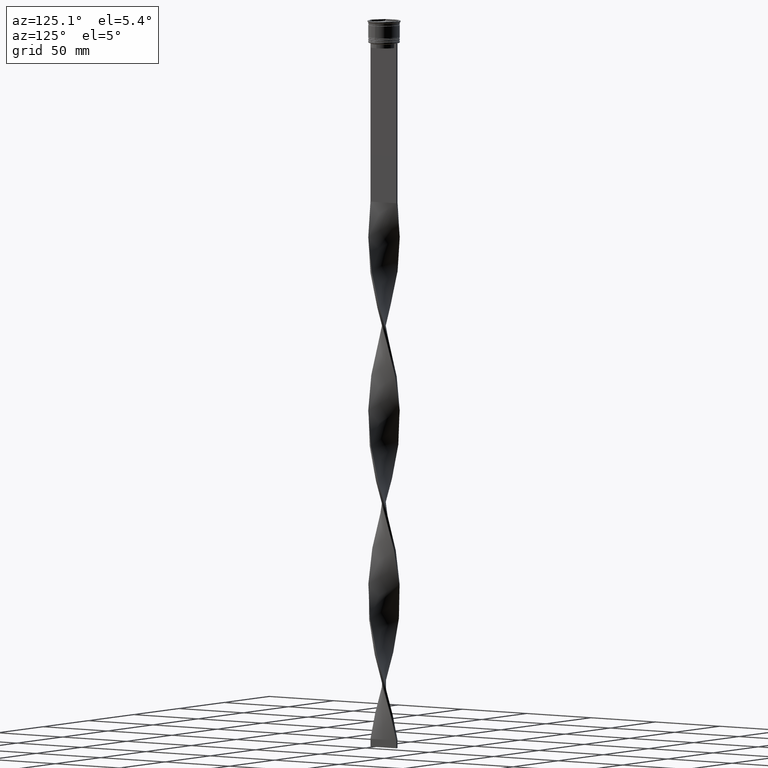
[diagram: clean part render]
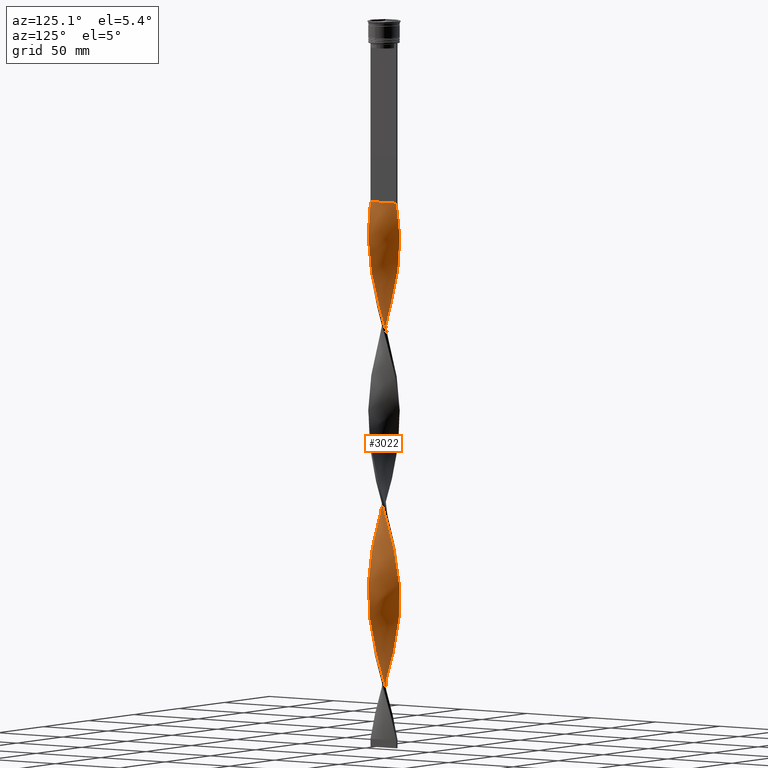
[diagram: same view with one face highlighted and labeled with its STEP entity id]
A machine part, auxiliary view. The second image highlights one B-rep face of the part: STEP entity #3022.
In plain terms, the highlighted face is a freeform B-spline surface patch.
Its self-contained STEP definition (entity closure, byte-faithful):
#2 = CARTESIAN_POINT ( 'NONE',  ( -4.775468024932588484, 8.818015941403508862, -136.7878787878787818 ) ) ;
#8 = ORIENTED_EDGE ( 'NONE', *, *, #1946, .F. ) ;
#25 = CARTESIAN_POINT ( 'NONE',  ( 9.636597638877821836, -2.865814812699135850, -279.7045454545454390 ) ) ;
#26 = CARTESIAN_POINT ( 'NONE',  ( 8.048641294001544821, 5.981795158687156722, -313.4848484848484986 ) ) ;
#45 = CARTESIAN_POINT ( 'NONE',  ( 2.799061189350515289, 9.656198271192613092, -446.0075757575756938 ) ) ;
#49 = CARTESIAN_POINT ( 'NONE',  ( 9.656198271192604210, 2.799061189350513956, -300.4924242424241925 ) ) ;
#66 = CARTESIAN_POINT ( 'NONE',  ( -2.165514464143551088, -9.791478290104359772, -453.8030303030303116 ) ) ;
#67 = CARTESIAN_POINT ( 'NONE',  ( -3.471926133502974299, 9.407881213296597878, -360.2575757575757507 ) ) ;
#84 = CARTESIAN_POINT ( 'NONE',  ( 2.097705838203425266, 9.806229153776049756, -448.6060606060606233 ) ) ;
#85 =( BOUNDED_CURVE ( )  B_SPLINE_CURVE ( 2, ( #4367, #1660, #3962, #2281, #1986, #3625, #2997, #2954, #3539, #2871, #4302, #1232, #1252, #2596, #896, #2261, #555, #1922, #3284, #220, #4324, #3986, #918, #3645, #577, #1944, #3307, #243, #1615, #3712, #3043, #986, #4414, #1344, #309, #2348, #4053, #646, #2010, #3375, #1680, #132, #2552, #3246, #3492, #3225, #91, #3537, #2842, #1211, #2173, #1168, #3830, #3558, #3583, #3850, #1124, #2150, #1190, #3897, #2891, #181, #851, #2217, #1809, #1142, #4261, #471, #1553, #3919, #2915, #2483, #808, #516, #3515, #490, #113, #1881, #4284, #1854, #763, #2128, #1460, #1501, #426, #1790, #4212, #1832, #3161, #2506, #832, #2821, #158, #4191, #782, #2196, #3202, #448, #3181, #1481, #3876, #2868, #4236, #2529, #1526, #422, #2439, #1369, #4143, #3825, #714, #3134, #759, #4075, #3804, #671, #4123, #3420, #1785, #2752, #1746, #3780, #383, #3445, #2057, #3112, #2079, #45, #2124, #1010, #3488, #1435, #2796 ),
 .UNSPECIFIED., .F., .T. ) 
 B_SPLINE_CURVE_WITH_KNOTS ( ( 3, 2, 2, 2, 2, 2, 2, 2, 2, 2, 2, 2, 2, 2, 2, 2, 2, 2, 2, 2, 2, 2, 2, 2, 2, 2, 2, 2, 2, 2, 2, 2, 2, 2, 2, 2, 2, 2, 2, 2, 2, 2, 2, 2, 2, 2, 2, 2, 2, 2, 2, 2, 2, 2, 2, 2, 2, 2, 2, 2, 2, 2, 2, 2, 2, 2, 3 ),
 ( 0.000000000000000000, 0.01136363636363636222, 0.02272727272727272443, 0.03409090909090908839, 0.04545454545454544887, 0.05681818181818181629, 0.06818181818181817677, 0.07954545454545454419, 0.09090909090909089774, 0.1022727272727272790, 0.1136363636363636326, 0.1250000000000000000, 0.1363636363636363535, 0.1477272727272727348, 0.1590909090909090884, 0.1704545454545454419, 0.1818181818181817955, 0.1931818181818182045, 0.2045454545454545581, 0.2159090909090909116, 0.2272727272727272652, 0.2386363636363636465, 0.2500000000000000000, 0.2613636363636363535, 0.2727272727272727071, 0.2840909090909091161, 0.2954545454545454697, 0.3068181818181818232, 0.3181818181818181768, 0.3295454545454545303, 0.3409090909090908839, 0.3522727272727272929, 0.3636363636363635909, 0.3750000000000000000, 0.3863636363636364091, 0.3977272727272727071, 0.4090909090909091161, 0.4204545454545454697, 0.4318181818181818232, 0.4431818181818181768, 0.4545454545454545303, 0.4659090909090908839, 0.4772727272727272929, 0.4886363636363635909, 0.5000000000000000000, 0.5113636363636363535, 0.5227272727272727071, 0.5340909090909090606, 0.5454545454545454142, 0.5568181818181817677, 0.5681818181818182323, 0.5795454545454545858, 0.5909090909090909394, 0.6022727272727272929, 0.6136363636363636465, 0.6250000000000000000, 0.6363636363636363535, 0.6477272727272727071, 0.6590909090909090606, 0.6704545454545454142, 0.6818181818181817677, 0.6931818181818182323, 0.7045454545454545858, 0.7159090909090909394, 0.7272727272727271819, 0.7386363636363636465, 0.7500000000000000000 ),
 .UNSPECIFIED. ) 
 CURVE ( )  GEOMETRIC_REPRESENTATION_ITEM ( )  RATIONAL_B_SPLINE_CURVE ( ( 1.000000000000000000, 0.9974521146102535152, 1.000000000000000000, 0.9974521146102535152, 1.000000000000000000, 0.9974521146102535152, 1.000000000000000000, 0.9974521146102535152, 1.000000000000000000, 0.9974521146102535152, 1.000000000000000000, 0.9974521146102535152, 1.000000000000000000, 0.9974521146102535152, 1.000000000000000000, 0.9974521146102535152, 1.000000000000000000, 0.9974521146102535152, 1.000000000000000000, 0.9974521146102535152, 1.000000000000000000, 0.9974521146102535152, 1.000000000000000000, 0.9974521146102535152, 1.000000000000000000, 0.9974521146102535152, 1.000000000000000000, 0.9974521146102535152, 1.000000000000000000, 0.9974521146102535152, 1.000000000000000000, 0.9974521146102535152, 1.000000000000000000, 0.9974521146102535152, 1.000000000000000000, 0.9974521146102535152, 1.000000000000000000, 0.9974521146102535152, 1.000000000000000000, 0.9974521146102535152, 1.000000000000000000, 0.9974521146102535152, 1.000000000000000000, 0.9974521146102535152, 1.000000000000000000, 0.9974521146102535152, 1.000000000000000000, 0.9974521146102535152, 1.000000000000000000, 0.9974521146102535152, 1.000000000000000000, 0.9974521146102535152, 1.000000000000000000, 0.9974521146102535152, 1.000000000000000000, 0.9974521146102535152, 1.000000000000000000, 0.9974521146102535152, 1.000000000000000000, 0.9974521146102535152, 1.000000000000000000, 0.9974521146102535152, 1.000000000000000000, 0.9974521146102535152, 1.000000000000000000, 0.9974521146102535152, 1.000000000000000000, 0.9974521146102535152, 1.000000000000000000, 0.9974521146102535152, 1.000000000000000000, 0.9974521146102535152, 1.000000000000000000, 0.9974521146102535152, 1.000000000000000000, 0.9974521146102535152, 1.000000000000000000, 0.9974521146102535152, 1.000000000000000000, 0.9974521146102535152, 1.000000000000000000, 0.9974521146102535152, 1.000000000000000000, 0.9974521146102535152, 1.000000000000000000, 0.9974521146102535152, 1.000000000000000000, 0.9974521146102535152, 1.000000000000000000, 0.9974521146102535152, 1.000000000000000000, 0.9974521146102535152, 1.000000000000000000, 0.9974521146102535152, 1.000000000000000000, 0.9974521146102535152, 1.000000000000000000, 0.9974521146102535152, 1.000000000000000000, 0.9974521146102535152, 1.000000000000000000, 0.9974521146102535152, 1.000000000000000000, 0.9974521146102535152, 1.000000000000000000, 0.9974521146102535152, 1.000000000000000000, 0.9974521146102535152, 1.000000000000000000, 0.9974521146102535152, 1.000000000000000000, 0.9974521146102535152, 1.000000000000000000, 0.9974521146102535152, 1.000000000000000000, 0.9974521146102535152, 1.000000000000000000, 0.9974521146102535152, 1.000000000000000000, 0.9974521146102535152, 1.000000000000000000, 0.9974521146102535152, 1.000000000000000000, 0.9974521146102535152, 1.000000000000000000, 0.9974521146102535152, 1.000000000000000000, 0.9974521146102535152, 1.000000000000000000, 0.9974521146102535152, 1.000000000000000000, 0.9974521146102535152, 1.000000000000000000 ) ) 
 REPRESENTATION_ITEM ( '' )  );
#88 = CARTESIAN_POINT ( 'NONE',  ( -10.00495054751428903, -0.6807823013221501185, -407.0303030303030027 ) ) ;
#89 = CARTESIAN_POINT ( 'NONE',  ( -5.464672468518298132, -8.438854389437555170, -440.8106060606060055 ) ) ;
#91 = CARTESIAN_POINT ( 'NONE',  ( -2.165514464143549311, 9.791478290104370430, -235.5303030303030312 ) ) ;
#105 = CARTESIAN_POINT ( 'NONE',  ( 3.471926133502976075, 9.407881213296604983, -443.4090909090909349 ) ) ;
#111 = CARTESIAN_POINT ( 'NONE',  ( -9.946358941330903036, 1.465214115587970323, -399.2348484848484418 ) ) ;
#113 = CARTESIAN_POINT ( 'NONE',  ( -7.066350193083621889, -7.115419520218549287, -313.4848484848484986 ) ) ;
#129 = CARTESIAN_POINT ( 'NONE',  ( -9.383630318513899837, 3.536945298625170153, -391.4393939393939945 ) ) ;
#131 = CARTESIAN_POINT ( 'NONE',  ( 9.806229153776049756, -2.097705838203426598, -162.7727272727272805 ) ) ;
#132 = CARTESIAN_POINT ( 'NONE',  ( 1.396350487056334355, 9.956260036359488197, -222.5378787878787534 ) ) ;
#157 = CARTESIAN_POINT ( 'NONE',  ( 7.575255041002672662, 6.610024179840429781, -196.5530303030303116 ) ) ;
#158 = CARTESIAN_POINT ( 'NONE',  ( 3.536945298625171041, -9.383630318513906943, -355.0606060606060623 ) ) ;
#159 = CARTESIAN_POINT ( 'NONE',  ( -2.799061189350513956, 9.656198271192604210, -128.9924242424242209 ) ) ;
#179 = CARTESIAN_POINT ( 'NONE',  ( 2.097705838203425266, 9.806229153776049756, -219.9393939393939377 ) ) ;
#181 = CARTESIAN_POINT ( 'NONE',  ( -9.656198271192609539, 2.799061189350520618, -274.5075757575757507 ) ) ;
#182 = CARTESIAN_POINT ( 'NONE',  ( -7.620814860596662577, -6.557445345164568451, -201.7499999999999716 ) ) ;
#200 = CARTESIAN_POINT ( 'NONE',  ( 9.383630318513906943, 3.536945298625171041, -183.5606060606060908 ) ) ;
#202 =( BOUNDED_SURFACE ( )  B_SPLINE_SURFACE ( 1, 2, ( 
 ( #2015, #3695, #4014, #1990, #340, #1373, #3026, #4079, #2, #698, #652, #3738, #3716, #3379, #608, #314, #3354, #3424, #948, #2690, #1036, #2980, #3051, #1280, #4352, #3404, #2332, #1329, #267, #674, #1686, #292, #2038, #2399, #363, #2643, #1707, #3071, #2060, #2732, #4102, #2309, #2709, #4395, #3763, #4420, #3674, #2352, #1971, #3333, #1350, #4058, #1640, #3002, #4373, #1305, #2666, #4036, #969, #628, #1664, #990, #4211, #2104, #3160, #2757, #1457, #387, #1730, #2780, #3534, #49, #1081, #447, #3784, #4127, #26, #2504, #2086, #3514, #1440, #2149, #3875, #2819, #1141, #2460, #1807, #807, #1395, #1123, #2420, #2801, #740, #3095, #67, #3491, #1058, #4190, #1480, #1750, #3449, #1419, #3177, #1789, #781, #2482, #4167, #3849, #1769, #111, #2841, #1101, #762, #2172, #719, #4147, #3116, #425, #2443, #3808, #3471, #406, #3137, #3829, #2127, #89, #4235, #3626, #1852, #2550, #1189, #2193, #1525 ),
 ( #2955, #3942, #876, #3916, #1233, #3224, #919, #3581, #2239, #1923, #515, #3245, #1903, #489, #222, #1595, #1167, #2573, #131, #4325, #850, #1552, #1253, #2216, #3267, #1499, #200, #3557, #468, #2890, #2283, #157, #4259, #558, #2528, #2866, #3201, #2621, #830, #2263, #179, #897, #3987, #1571, #1831, #1209, #3285, #3895, #1880, #4304, #2914, #4282, #3601, #535, #2931, #2597, #3963, #3376, #3398, #3670, #943, #1966, #1008, #3713, #2706, #311, #3350, #1345, #3692, #3734, #4074, #3023, #2684, #2728, #670, #1637, #1367, #2349, #2372, #1032, #334, #2033, #1703, #625, #3044, #4415, #2977, #3066, #601, #1302, #4368, #2305, #264, #4098, #287, #4008, #4349, #4436, #4054, #987, #2662, #3646, #3330, #580, #2326, #647, #1945, #1987, #1661, #2012, #2998, #3308, #244, #1616, #4032, #4391, #963, #1681, #1277, #1322, #2639, #443, #2836, #2054, #2815, #4184, #105, #1454, #84, #3758, #2123, #2437, #1119 ) ),
 .UNSPECIFIED., .F., .F., .F. ) 
 B_SPLINE_SURFACE_WITH_KNOTS ( ( 2, 2 ),
 ( 3, 2, 2, 2, 2, 2, 2, 2, 2, 2, 2, 2, 2, 2, 2, 2, 2, 2, 2, 2, 2, 2, 2, 2, 2, 2, 2, 2, 2, 2, 2, 2, 2, 2, 2, 2, 2, 2, 2, 2, 2, 2, 2, 2, 2, 2, 2, 2, 2, 2, 2, 2, 2, 2, 2, 2, 2, 2, 2, 2, 2, 2, 2, 2, 2, 2, 3 ),
 ( 0.000000000000000000, 1.000000000000000000 ),
 ( 0.000000000000000000, 0.01136363636363636395, 0.02272727272727272790, 0.03409090909090908839, 0.04545454545454545581, 0.05681818181818181629, 0.06818181818181817677, 0.07954545454545454419, 0.09090909090909091161, 0.1022727272727272790, 0.1136363636363636326, 0.1250000000000000000, 0.1363636363636363535, 0.1477272727272727348, 0.1590909090909090884, 0.1704545454545454419, 0.1818181818181818232, 0.1931818181818181768, 0.2045454545454545581, 0.2159090909090909116, 0.2272727272727272652, 0.2386363636363636465, 0.2500000000000000000, 0.2613636363636363535, 0.2727272727272727071, 0.2840909090909091161, 0.2954545454545454697, 0.3068181818181818232, 0.3181818181818181768, 0.3295454545454545303, 0.3409090909090908839, 0.3522727272727272929, 0.3636363636363636465, 0.3750000000000000000, 0.3863636363636363535, 0.3977272727272727071, 0.4090909090909091161, 0.4204545454545454697, 0.4318181818181818232, 0.4431818181818181768, 0.4545454545454545303, 0.4659090909090908839, 0.4772727272727272929, 0.4886363636363636465, 0.5000000000000000000, 0.5113636363636363535, 0.5227272727272727071, 0.5340909090909090606, 0.5454545454545454142, 0.5568181818181817677, 0.5681818181818182323, 0.5795454545454545858, 0.5909090909090909394, 0.6022727272727272929, 0.6136363636363636465, 0.6250000000000000000, 0.6363636363636363535, 0.6477272727272727071, 0.6590909090909090606, 0.6704545454545454142, 0.6818181818181817677, 0.6931818181818182323, 0.7045454545454545858, 0.7159090909090909394, 0.7272727272727272929, 0.7386363636363636465, 0.7500000000000000000 ),
 .UNSPECIFIED. ) 
 GEOMETRIC_REPRESENTATION_ITEM ( )  RATIONAL_B_SPLINE_SURFACE ( (
 ( 1.000000000000000000, 0.9974521146102535152, 1.000000000000000000, 0.9974521146102535152, 1.000000000000000000, 0.9974521146102535152, 1.000000000000000000, 0.9974521146102535152, 1.000000000000000000, 0.9974521146102535152, 1.000000000000000000, 0.9974521146102535152, 1.000000000000000000, 0.9974521146102535152, 1.000000000000000000, 0.9974521146102535152, 1.000000000000000000, 0.9974521146102535152, 1.000000000000000000, 0.9974521146102535152, 1.000000000000000000, 0.9974521146102535152, 1.000000000000000000, 0.9974521146102535152, 1.000000000000000000, 0.9974521146102535152, 1.000000000000000000, 0.9974521146102535152, 1.000000000000000000, 0.9974521146102535152, 1.000000000000000000, 0.9974521146102535152, 1.000000000000000000, 0.9974521146102535152, 1.000000000000000000, 0.9974521146102535152, 1.000000000000000000, 0.9974521146102535152, 1.000000000000000000, 0.9974521146102535152, 1.000000000000000000, 0.9974521146102535152, 1.000000000000000000, 0.9974521146102535152, 1.000000000000000000, 0.9974521146102535152, 1.000000000000000000, 0.9974521146102535152, 1.000000000000000000, 0.9974521146102535152, 1.000000000000000000, 0.9974521146102535152, 1.000000000000000000, 0.9974521146102535152, 1.000000000000000000, 0.9974521146102535152, 1.000000000000000000, 0.9974521146102535152, 1.000000000000000000, 0.9974521146102535152, 1.000000000000000000, 0.9974521146102535152, 1.000000000000000000, 0.9974521146102535152, 1.000000000000000000, 0.9974521146102535152, 1.000000000000000000, 0.9974521146102535152, 1.000000000000000000, 0.9974521146102535152, 1.000000000000000000, 0.9974521146102535152, 1.000000000000000000, 0.9974521146102535152, 1.000000000000000000, 0.9974521146102535152, 1.000000000000000000, 0.9974521146102535152, 1.000000000000000000, 0.9974521146102535152, 1.000000000000000000, 0.9974521146102535152, 1.000000000000000000, 0.9974521146102535152, 1.000000000000000000, 0.9974521146102535152, 1.000000000000000000, 0.9974521146102535152, 1.000000000000000000, 0.9974521146102535152, 1.000000000000000000, 0.9974521146102535152, 1.000000000000000000, 0.9974521146102535152, 1.000000000000000000, 0.9974521146102535152, 1.000000000000000000, 0.9974521146102535152, 1.000000000000000000, 0.9974521146102535152, 1.000000000000000000, 0.9974521146102535152, 1.000000000000000000, 0.9974521146102535152, 1.000000000000000000, 0.9974521146102535152, 1.000000000000000000, 0.9974521146102535152, 1.000000000000000000, 0.9974521146102535152, 1.000000000000000000, 0.9974521146102535152, 1.000000000000000000, 0.9974521146102535152, 1.000000000000000000, 0.9974521146102535152, 1.000000000000000000, 0.9974521146102535152, 1.000000000000000000, 0.9974521146102535152, 1.000000000000000000, 0.9974521146102535152, 1.000000000000000000, 0.9974521146102535152, 1.000000000000000000, 0.9974521146102535152, 1.000000000000000000, 0.9974521146102535152, 1.000000000000000000, 0.9974521146102535152, 1.000000000000000000, 0.9974521146102535152, 1.000000000000000000),
 ( 1.000000000000000000, 0.9974521146102535152, 1.000000000000000000, 0.9974521146102535152, 1.000000000000000000, 0.9974521146102535152, 1.000000000000000000, 0.9974521146102535152, 1.000000000000000000, 0.9974521146102535152, 1.000000000000000000, 0.9974521146102535152, 1.000000000000000000, 0.9974521146102535152, 1.000000000000000000, 0.9974521146102535152, 1.000000000000000000, 0.9974521146102535152, 1.000000000000000000, 0.9974521146102535152, 1.000000000000000000, 0.9974521146102535152, 1.000000000000000000, 0.9974521146102535152, 1.000000000000000000, 0.9974521146102535152, 1.000000000000000000, 0.9974521146102535152, 1.000000000000000000, 0.9974521146102535152, 1.000000000000000000, 0.9974521146102535152, 1.000000000000000000, 0.9974521146102535152, 1.000000000000000000, 0.9974521146102535152, 1.000000000000000000, 0.9974521146102535152, 1.000000000000000000, 0.9974521146102535152, 1.000000000000000000, 0.9974521146102535152, 1.000000000000000000, 0.9974521146102535152, 1.000000000000000000, 0.9974521146102535152, 1.000000000000000000, 0.9974521146102535152, 1.000000000000000000, 0.9974521146102535152, 1.000000000000000000, 0.9974521146102535152, 1.000000000000000000, 0.9974521146102535152, 1.000000000000000000, 0.9974521146102535152, 1.000000000000000000, 0.9974521146102535152, 1.000000000000000000, 0.9974521146102535152, 1.000000000000000000, 0.9974521146102535152, 1.000000000000000000, 0.9974521146102535152, 1.000000000000000000, 0.9974521146102535152, 1.000000000000000000, 0.9974521146102535152, 1.000000000000000000, 0.9974521146102535152, 1.000000000000000000, 0.9974521146102535152, 1.000000000000000000, 0.9974521146102535152, 1.000000000000000000, 0.9974521146102535152, 1.000000000000000000, 0.9974521146102535152, 1.000000000000000000, 0.9974521146102535152, 1.000000000000000000, 0.9974521146102535152, 1.000000000000000000, 0.9974521146102535152, 1.000000000000000000, 0.9974521146102535152, 1.000000000000000000, 0.9974521146102535152, 1.000000000000000000, 0.9974521146102535152, 1.000000000000000000, 0.9974521146102535152, 1.000000000000000000, 0.9974521146102535152, 1.000000000000000000, 0.9974521146102535152, 1.000000000000000000, 0.9974521146102535152, 1.000000000000000000, 0.9974521146102535152, 1.000000000000000000, 0.9974521146102535152, 1.000000000000000000, 0.9974521146102535152, 1.000000000000000000, 0.9974521146102535152, 1.000000000000000000, 0.9974521146102535152, 1.000000000000000000, 0.9974521146102535152, 1.000000000000000000, 0.9974521146102535152, 1.000000000000000000, 0.9974521146102535152, 1.000000000000000000, 0.9974521146102535152, 1.000000000000000000, 0.9974521146102535152, 1.000000000000000000, 0.9974521146102535152, 1.000000000000000000, 0.9974521146102535152, 1.000000000000000000, 0.9974521146102535152, 1.000000000000000000, 0.9974521146102535152, 1.000000000000000000, 0.9974521146102535152, 1.000000000000000000, 0.9974521146102535152, 1.000000000000000000, 0.9974521146102535152, 1.000000000000000000) ) ) 
 REPRESENTATION_ITEM ( '' )  SURFACE ( )  );
#203 = CARTESIAN_POINT ( 'NONE',  ( -9.946358941330901260, 1.465214115587970545, -170.5681818181818414 ) ) ;
#220 = CARTESIAN_POINT ( 'NONE',  ( 9.956260036359488197, -1.396350487056333467, -165.3712121212121247 ) ) ;
#222 = CARTESIAN_POINT ( 'NONE',  ( 8.818015941403514191, -4.775468024932593814, -152.3787878787879038 ) ) ;
#243 = CARTESIAN_POINT ( 'NONE',  ( 9.130662998149981391, 4.208075784551210674, -186.1590909090908781 ) ) ;
#244 = CARTESIAN_POINT ( 'NONE',  ( 9.791478290104370430, 2.165514464143550200, -407.0303030303030027 ) ) ;
#246 = CARTESIAN_POINT ( 'NONE',  ( -9.407881213296597878, -3.471926133502973411, -188.7575757575757507 ) ) ;
#264 = CARTESIAN_POINT ( 'NONE',  ( 3.536945298625171041, -9.383630318513906943, -355.0606060606060623 ) ) ;
#266 = CARTESIAN_POINT ( 'NONE',  ( -8.438854389437556947, 5.464672468518296355, -383.6439393939393767 ) ) ;
#267 = CARTESIAN_POINT ( 'NONE',  ( -9.407881213296597878, -3.471926133502973411, -188.7575757575757507 ) ) ;
#287 = CARTESIAN_POINT ( 'NONE',  ( 4.836374126534755291, -8.784758693793774498, -360.2575757575757507 ) ) ;
#290 = CARTESIAN_POINT ( 'NONE',  ( 9.999999999999998224, -0.7500000000000021094, -287.5000000000000568 ) ) ;
#292 = CARTESIAN_POINT ( 'NONE',  ( -8.476467727406427954, -5.406144972209742328, -196.5530303030303116 ) ) ;
#309 = CARTESIAN_POINT ( 'NONE',  ( 5.981795158687161162, 8.048641294001550150, -204.3484848484848726 ) ) ;
#311 = CARTESIAN_POINT ( 'NONE',  ( -10.05364105866910052, -0.03478588441203238346, -284.9015151515151842 ) ) ;
#313 = CARTESIAN_POINT ( 'NONE',  ( -6.557445345164569339, 7.620814860596662577, -373.2499999999999432 ) ) ;
#314 = CARTESIAN_POINT ( 'NONE',  ( -8.438854389437556947, 5.464672468518296355, -154.9772727272727195 ) ) ;
#334 = CARTESIAN_POINT ( 'NONE',  ( -4.775468024932591149, -8.818015941403515967, -323.8787878787878753 ) ) ;
#339 = CARTESIAN_POINT ( 'NONE',  ( 5.464672468518299908, 8.438854389437555170, -326.4772727272727479 ) ) ;
#340 = CARTESIAN_POINT ( 'NONE',  ( -2.097705838203423490, 9.806229153776044427, -126.3939393939393909 ) ) ;
#360 = CARTESIAN_POINT ( 'NONE',  ( 2.799061189350514844, -9.656198271192604210, -243.3257575757575637 ) ) ;
#363 = CARTESIAN_POINT ( 'NONE',  ( -7.115419520218544847, -7.066350193083616560, -204.3484848484848726 ) ) ;
#383 = CARTESIAN_POINT ( 'NONE',  ( 5.981795158687161162, 8.048641294001550150, -433.0151515151515014 ) ) ;
#387 = CARTESIAN_POINT ( 'NONE',  ( 10.05364105866909341, -0.03478588441202762338, -290.0984848484849294 ) ) ;
#405 = CARTESIAN_POINT ( 'NONE',  ( -0.7500000000000014433, -9.999999999999998224, -459.0000000000000000 ) ) ;
#406 = CARTESIAN_POINT ( 'NONE',  ( -7.620814860596663465, -6.557445345164568451, -430.4166666666666856 ) ) ;
#422 = CARTESIAN_POINT ( 'NONE',  ( 9.656198271192611315, -2.799061189350517065, -388.8409090909090651 ) ) ;
#424 = CARTESIAN_POINT ( 'NONE',  ( -9.791478290104359772, 2.165514464143550644, -396.6363636363636260 ) ) ;
#425 = CARTESIAN_POINT ( 'NONE',  ( -9.159564155400586216, -4.144791077655436418, -420.0227272727271952 ) ) ;
#426 = CARTESIAN_POINT ( 'NONE',  ( -2.097705838203426598, -9.806229153776049756, -334.2727272727272521 ) ) ;
#443 = CARTESIAN_POINT ( 'NONE',  ( 6.557445345164574668, 7.620814860596667906, -430.4166666666666856 ) ) ;
#446 = CARTESIAN_POINT ( 'NONE',  ( -4.208075784551207121, -9.130662998149977838, -446.0075757575756938 ) ) ;
#447 = CARTESIAN_POINT ( 'NONE',  ( 9.159564155400587993, 4.144791077655435529, -305.6893939393939945 ) ) ;
#448 = CARTESIAN_POINT ( 'NONE',  ( 6.610024179840428005, -7.575255041002671774, -368.0530303030302548 ) ) ;
#451 = CARTESIAN_POINT ( 'NONE',  ( -0.7499999999999988898, 10.00000000000000533, -459.0000000000000000 ) ) ;
#465 = CARTESIAN_POINT ( 'NONE',  ( -7.115419520218544847, -7.066350193083616560, -433.0151515151515014 ) ) ;
#468 = CARTESIAN_POINT ( 'NONE',  ( 8.784758693793774498, 4.836374126534754403, -188.7575757575757507 ) ) ;
#471 = CARTESIAN_POINT ( 'NONE',  ( -9.946358941330908365, -1.465214115587972765, -290.0984848484848726 ) ) ;
#472 = CARTESIAN_POINT ( 'NONE',  ( 0.7500000000000001110, -10.00000000000000533, -116.0000000000000000 ) ) ;
#489 = CARTESIAN_POINT ( 'NONE',  ( 8.476467727406435060, -5.406144972209745880, -149.7803030303030596 ) ) ;
#490 = CARTESIAN_POINT ( 'NONE',  ( -7.575255041002671774, -6.610024179840428005, -310.8863636363635692 ) ) ;
#491 = CARTESIAN_POINT ( 'NONE',  ( -2.097705838203423490, 9.806229153776044427, -126.3939393939393909 ) ) ;
#515 = CARTESIAN_POINT ( 'NONE',  ( 7.115419520218548399, -7.066350193083622777, -141.9848484848484986 ) ) ;
#516 = CARTESIAN_POINT ( 'NONE',  ( -8.438854389437562276, -5.464672468518299020, -305.6893939393939945 ) ) ;
#517 = CARTESIAN_POINT ( 'NONE',  ( -9.159564155400586216, -4.144791077655436418, -191.3560606060605949 ) ) ;
#535 = CARTESIAN_POINT ( 'NONE',  ( -6.610024179840428893, 7.575255041002672662, -253.7196969696969973 ) ) ;
#538 = CARTESIAN_POINT ( 'NONE',  ( -7.115419520218544847, -7.066350193083616560, -204.3484848484848726 ) ) ;
#555 = CARTESIAN_POINT ( 'NONE',  ( 9.407881213296603207, -3.471926133502977851, -157.5757575757575921 ) ) ;
#558 = CARTESIAN_POINT ( 'NONE',  ( 6.557445345164574668, 7.620814860596667906, -201.7500000000000000 ) ) ;
#560 = CARTESIAN_POINT ( 'NONE',  ( -9.636597638877821836, 2.865814812699130076, -165.3712121212121247 ) ) ;
#577 = CARTESIAN_POINT ( 'NONE',  ( 9.791478290104370430, 2.165514464143550200, -178.3636363636364024 ) ) ;
#580 = CARTESIAN_POINT ( 'NONE',  ( 9.159564155400593322, -4.144791077655439970, -383.6439393939393767 ) ) ;
#585 = CARTESIAN_POINT ( 'NONE',  ( -8.007054715220110808, 6.037348324179362180, -152.3787878787879038 ) ) ;
#601 = CARTESIAN_POINT ( 'NONE',  ( 0.7500000000000001110, -10.00000000000000533, -344.6666666666666856 ) ) ;
#604 = CARTESIAN_POINT ( 'NONE',  ( 0.03478588441202989240, 10.05364105866909341, -347.2651515151514445 ) ) ;
#608 = CARTESIAN_POINT ( 'NONE',  ( -8.007054715220110808, 6.037348324179362180, -152.3787878787879038 ) ) ;
#625 = CARTESIAN_POINT ( 'NONE',  ( -2.799061189350521062, -9.656198271192609539, -331.6742424242423795 ) ) ;
#627 = CARTESIAN_POINT ( 'NONE',  ( 7.066350193083616560, -7.115419520218544847, -261.5151515151515582 ) ) ;
#628 = CARTESIAN_POINT ( 'NONE',  ( 8.438854389437555170, -5.464672468518299020, -269.3106060606060623 ) ) ;
#646 = CARTESIAN_POINT ( 'NONE',  ( 4.144791077655440859, 9.159564155400591545, -212.1439393939393767 ) ) ;
#647 = CARTESIAN_POINT ( 'NONE',  ( 9.656198271192611315, -2.799061189350517065, -388.8409090909090651 ) ) ;
#650 = CARTESIAN_POINT ( 'NONE',  ( 8.784758693793767392, -4.836374126534752627, -271.9090909090909349 ) ) ;
#652 = CARTESIAN_POINT ( 'NONE',  ( -5.981795158687155833, 8.048641294001546598, -141.9848484848484986 ) ) ;
#670 = CARTESIAN_POINT ( 'NONE',  ( -8.007054715220119689, -6.037348324179360404, -308.2878787878788103 ) ) ;
#671 = CARTESIAN_POINT ( 'NONE',  ( 9.130662998149981391, 4.208075784551210674, -414.8257575757575637 ) ) ;
#673 = CARTESIAN_POINT ( 'NONE',  ( -8.007054715220110808, 6.037348324179362180, -381.0454545454545610 ) ) ;
#674 = CARTESIAN_POINT ( 'NONE',  ( -9.159564155400586216, -4.144791077655436418, -191.3560606060605949 ) ) ;
#697 = CARTESIAN_POINT ( 'NONE',  ( -1.396350487056332579, 9.956260036359481091, -352.4621212121211897 ) ) ;
#698 = CARTESIAN_POINT ( 'NONE',  ( -5.406144972209740551, 8.476467727406427954, -139.3863636363635976 ) ) ;
#714 = CARTESIAN_POINT ( 'NONE',  ( 10.00000000000000533, 0.7499999999999994449, -401.8333333333333144 ) ) ;
#717 = CARTESIAN_POINT ( 'NONE',  ( -4.836374126534751738, -8.784758693793767392, -443.4090909090909349 ) ) ;
#719 = CARTESIAN_POINT ( 'NONE',  ( -9.806229153776044427, -2.097705838203423490, -412.2272727272727479 ) ) ;
#740 = CARTESIAN_POINT ( 'NONE',  ( -2.097705838203423490, 9.806229153776044427, -355.0606060606060623 ) ) ;
#759 = CARTESIAN_POINT ( 'NONE',  ( 9.791478290104370430, 2.165514464143550200, -407.0303030303030027 ) ) ;
#761 = CARTESIAN_POINT ( 'NONE',  ( -8.476467727406427954, -5.406144972209742328, -425.2196969696969404 ) ) ;
#762 = CARTESIAN_POINT ( 'NONE',  ( -10.00495054751428903, -0.6807823013221502295, -407.0303030303030027 ) ) ;
#763 = CARTESIAN_POINT ( 'NONE',  ( -4.775468024932591149, -8.818015941403515967, -323.8787878787878753 ) ) ;
#780 = CARTESIAN_POINT ( 'NONE',  ( -7.620814860596662577, -6.557445345164568451, -430.4166666666666856 ) ) ;
#781 = CARTESIAN_POINT ( 'NONE',  ( -8.784758693793767392, 4.836374126534752627, -386.2424242424242493 ) ) ;
#782 = CARTESIAN_POINT ( 'NONE',  ( 4.836374126534755291, -8.784758693793774498, -360.2575757575757507 ) ) ;
#799 = EDGE_CURVE ( 'NONE', #3118, #894, #1085, .T. ) ;
#804 = CARTESIAN_POINT ( 'NONE',  ( -9.636597638877821836, 2.865814812699130076, -394.0378787878787534 ) ) ;
#807 = CARTESIAN_POINT ( 'NONE',  ( 1.465214115587967880, 9.946358941330903036, -342.0681818181818699 ) ) ;
#808 = CARTESIAN_POINT ( 'NONE',  ( -8.784758693793776274, -4.836374126534751738, -303.0909090909091219 ) ) ;
#830 = CARTESIAN_POINT ( 'NONE',  ( 3.471926133502976075, 9.407881213296604983, -214.7424242424242209 ) ) ;
#832 = CARTESIAN_POINT ( 'NONE',  ( 2.165514464143551976, -9.791478290104366877, -349.8636363636363740 ) ) ;
#840 = CARTESIAN_POINT ( 'NONE',  ( -0.7500000000000014433, -9.999999999999998224, -459.0000000000000000 ) ) ;
#850 = CARTESIAN_POINT ( 'NONE',  ( 10.00495054751429613, -0.6807823013221522279, -167.9696969696969973 ) ) ;
#851 = CARTESIAN_POINT ( 'NONE',  ( -9.806229153776049756, 2.097705838203426154, -277.1060606060606233 ) ) ;
#852 = CARTESIAN_POINT ( 'NONE',  ( -10.05364105866909341, 0.03478588441203087078, -175.7651515151515014 ) ) ;
#876 = CARTESIAN_POINT ( 'NONE',  ( 2.165514464143551976, -9.791478290104366877, -121.1969696969697026 ) ) ;
#894 = VERTEX_POINT ( 'NONE', #3269 ) ;
#896 = CARTESIAN_POINT ( 'NONE',  ( 8.818015941403514191, -4.775468024932593814, -152.3787878787879038 ) ) ;
#897 = CARTESIAN_POINT ( 'NONE',  ( 1.396350487056334355, 9.956260036359488197, -222.5378787878787250 ) ) ;
#901 = CARTESIAN_POINT ( 'NONE',  ( -1.396350487056332579, 9.956260036359481091, -123.7954545454545467 ) ) ;
#913 = EDGE_CURVE ( 'NONE', #894, #949, #4011, .T. ) ;
#918 = CARTESIAN_POINT ( 'NONE',  ( 10.00000000000000533, 0.7499999999999994449, -173.1666666666666856 ) ) ;
#919 = CARTESIAN_POINT ( 'NONE',  ( 4.836374126534755291, -8.784758693793774498, -131.5909090909090935 ) ) ;
#921 = CARTESIAN_POINT ( 'NONE',  ( -0.6807823013221514508, 10.00495054751428903, -121.1969696969697026 ) ) ;
#943 = CARTESIAN_POINT ( 'NONE',  ( -9.407881213296604983, 3.471926133502976963, -271.9090909090909349 ) ) ;
#948 = CARTESIAN_POINT ( 'NONE',  ( -9.383630318513899837, 3.536945298625170153, -162.7727272727272805 ) ) ;
#949 = VERTEX_POINT ( 'NONE', #405 ) ;
#963 = CARTESIAN_POINT ( 'NONE',  ( 8.784758693793774498, 4.836374126534754403, -417.4242424242424363 ) ) ;
#967 = CARTESIAN_POINT ( 'NONE',  ( -4.144791077655435529, 9.159564155400587993, -362.8560606060606233 ) ) ;
#969 = CARTESIAN_POINT ( 'NONE',  ( 8.007054715220114360, -6.037348324179360404, -266.7121212121212466 ) ) ;
#986 = CARTESIAN_POINT ( 'NONE',  ( 7.575255041002671774, 6.610024179840428893, -196.5530303030303116 ) ) ;
#987 = CARTESIAN_POINT ( 'NONE',  ( 7.620814860596668794, -6.557445345164574668, -373.2499999999999432 ) ) ;
#989 = CARTESIAN_POINT ( 'NONE',  ( 6.610024179840426228, 7.575255041002662892, -321.2803030303030027 ) ) ;
#990 = CARTESIAN_POINT ( 'NONE',  ( 9.130662998149976062, -4.208075784551212450, -274.5075757575757507 ) ) ;
#1008 = CARTESIAN_POINT ( 'NONE',  ( -9.806229153776049756, 2.097705838203426154, -277.1060606060606233 ) ) ;
#1010 = CARTESIAN_POINT ( 'NONE',  ( 1.396350487056334355, 9.956260036359488197, -451.2045454545454959 ) ) ;
#1012 = CARTESIAN_POINT ( 'NONE',  ( 3.536945298625170153, 9.383630318513899837, -334.2727272727272521 ) ) ;
#1013 = FACE_OUTER_BOUND ( 'NONE', #3689, .T. ) ;
#1032 = CARTESIAN_POINT ( 'NONE',  ( -5.406144972209749433, -8.476467727406431507, -321.2803030303030596 ) ) ;
#1035 = CARTESIAN_POINT ( 'NONE',  ( 2.165514464143552864, 9.791478290104359772, -339.4696969696969973 ) ) ;
#1036 = CARTESIAN_POINT ( 'NONE',  ( -9.791478290104359772, 2.165514464143550644, -167.9696969696969973 ) ) ;
#1058 = CARTESIAN_POINT ( 'NONE',  ( -4.775468024932588484, 8.818015941403508862, -365.4545454545454959 ) ) ;
#1081 = CARTESIAN_POINT ( 'NONE',  ( 9.407881213296599654, 3.471926133502971190, -303.0909090909091219 ) ) ;
#1085 = LINE ( 'NONE', #472, #4265 ) ;
#1101 = CARTESIAN_POINT ( 'NONE',  ( -10.05364105866909341, 0.03478588441203076670, -404.4318181818180733 ) ) ;
#1119 = CARTESIAN_POINT ( 'NONE',  ( -0.7499999999999988898, 10.00000000000000533, -459.0000000000000000 ) ) ;
#1122 = CARTESIAN_POINT ( 'NONE',  ( -9.999999999999998224, 0.7500000000000008882, -401.8333333333333144 ) ) ;
#1123 = CARTESIAN_POINT ( 'NONE',  ( 0.03478588441202978832, 10.05364105866909341, -347.2651515151514445 ) ) ;
#1124 = CARTESIAN_POINT ( 'NONE',  ( -8.048641294001550150, 5.981795158687161162, -261.5151515151515582 ) ) ;
#1139 = CARTESIAN_POINT ( 'NONE',  ( -9.407881213296597878, -3.471926133502973411, -417.4242424242424363 ) ) ;
#1141 = CARTESIAN_POINT ( 'NONE',  ( 3.536945298625170153, 9.383630318513899837, -334.2727272727272521 ) ) ;
#1142 = CARTESIAN_POINT ( 'NONE',  ( -10.05364105866910052, -0.03478588441203238346, -284.9015151515151842 ) ) ;
#1167 = CARTESIAN_POINT ( 'NONE',  ( 9.407881213296603207, -3.471926133502977851, -157.5757575757575921 ) ) ;
#1168 = CARTESIAN_POINT ( 'NONE',  ( -5.464672468518299908, 8.438854389437562276, -248.5227272727272521 ) ) ;
#1189 = CARTESIAN_POINT ( 'NONE',  ( -2.165514464143551088, -9.791478290104359772, -453.8030303030303116 ) ) ;
#1190 = CARTESIAN_POINT ( 'NONE',  ( -8.818015941403515967, 4.775468024932590261, -266.7121212121212466 ) ) ;
#1209 = CARTESIAN_POINT ( 'NONE',  ( -1.465214115587968990, 9.946358941330910142, -232.9318181818181870 ) ) ;
#1211 = CARTESIAN_POINT ( 'NONE',  ( -4.208075784551211562, 9.130662998149981391, -243.3257575757575637 ) ) ;
#1232 = CARTESIAN_POINT ( 'NONE',  ( 7.620814860596667906, -6.557445345164574668, -144.5833333333333428 ) ) ;
#1233 = CARTESIAN_POINT ( 'NONE',  ( 3.536945298625171041, -9.383630318513906943, -126.3939393939393909 ) ) ;
#1252 = CARTESIAN_POINT ( 'NONE',  ( 8.048641294001550150, -5.981795158687160274, -147.1818181818181870 ) ) ;
#1253 = CARTESIAN_POINT ( 'NONE',  ( 10.00000000000000533, 0.7499999999999994449, -173.1666666666666856 ) ) ;
#1257 = CARTESIAN_POINT ( 'NONE',  ( -9.956260036359481091, -1.396350487056333023, -180.9621212121212182 ) ) ;
#1277 = CARTESIAN_POINT ( 'NONE',  ( 8.007054715220117913, 6.037348324179364845, -422.6212121212121247 ) ) ;
#1279 = CARTESIAN_POINT ( 'NONE',  ( -8.438854389437556947, 5.464672468518296355, -154.9772727272727195 ) ) ;
#1280 = CARTESIAN_POINT ( 'NONE',  ( -10.05364105866909341, 0.03478588441203076670, -175.7651515151515014 ) ) ;
#1302 = CARTESIAN_POINT ( 'NONE',  ( 1.465214115587970545, -9.946358941330910142, -347.2651515151514445 ) ) ;
#1304 = CARTESIAN_POINT ( 'NONE',  ( 0.7500000000000002220, 9.999999999999998224, -344.6666666666666856 ) ) ;
#1305 = CARTESIAN_POINT ( 'NONE',  ( 6.557445345164568451, -7.620814860596664353, -258.9166666666666288 ) ) ;
#1322 = CARTESIAN_POINT ( 'NONE',  ( 7.575255041002672662, 6.610024179840429781, -425.2196969696969404 ) ) ;
#1327 = CARTESIAN_POINT ( 'NONE',  ( 4.775468024932588484, -8.818015941403508862, -251.1212121212121247 ) ) ;
#1329 = CARTESIAN_POINT ( 'NONE',  ( -9.656198271192604210, -2.799061189350513512, -186.1590909090908781 ) ) ;
#1344 = CARTESIAN_POINT ( 'NONE',  ( 6.557445345164574668, 7.620814860596667017, -201.7499999999999716 ) ) ;
#1345 = CARTESIAN_POINT ( 'NONE',  ( -9.946358941330910142, -1.465214115587972765, -290.0984848484849294 ) ) ;
#1348 = CARTESIAN_POINT ( 'NONE',  ( 3.471926133502975187, -9.407881213296597878, -245.9242424242424363 ) ) ;
#1350 = CARTESIAN_POINT ( 'NONE',  ( 3.471926133502975187, -9.407881213296597878, -245.9242424242424363 ) ) ;
#1367 = CARTESIAN_POINT ( 'NONE',  ( -7.066350193083621889, -7.115419520218549287, -313.4848484848484986 ) ) ;
#1369 = CARTESIAN_POINT ( 'NONE',  ( 9.956260036359488197, -1.396350487056333467, -394.0378787878787534 ) ) ;
#1371 = CARTESIAN_POINT ( 'NONE',  ( 10.05364105866909341, -0.03478588441202772746, -290.0984848484848726 ) ) ;
#1373 = CARTESIAN_POINT ( 'NONE',  ( -2.799061189350513956, 9.656198271192604210, -128.9924242424241925 ) ) ;
#1394 = CARTESIAN_POINT ( 'NONE',  ( -8.784758693793767392, 4.836374126534752627, -386.2424242424242493 ) ) ;
#1395 = CARTESIAN_POINT ( 'NONE',  ( 0.7500000000000001110, 9.999999999999998224, -344.6666666666666856 ) ) ;
#1419 = CARTESIAN_POINT ( 'NONE',  ( -7.575255041002665557, 6.610024179840426228, -378.4469696969697452 ) ) ;
#1427 = ORIENTED_EDGE ( 'NONE', *, *, #799, .F. ) ;
#1435 = CARTESIAN_POINT ( 'NONE',  ( -0.03478588441202849074, 10.05364105866910052, -456.4015151515151274 ) ) ;
#1440 = CARTESIAN_POINT ( 'NONE',  ( 6.037348324179359516, 8.007054715220112584, -323.8787878787878753 ) ) ;
#1454 = CARTESIAN_POINT ( 'NONE',  ( 2.799061189350515289, 9.656198271192613092, -446.0075757575756938 ) ) ;
#1456 = CARTESIAN_POINT ( 'NONE',  ( -8.818015941403507085, -4.775468024932588484, -422.6212121212121247 ) ) ;
#1457 = CARTESIAN_POINT ( 'NONE',  ( 9.999999999999998224, -0.7500000000000019984, -287.5000000000000568 ) ) ;
#1460 = CARTESIAN_POINT ( 'NONE',  ( -3.471926133502977851, -9.407881213296603207, -329.0757575757575637 ) ) ;
#1480 = CARTESIAN_POINT ( 'NONE',  ( -5.981795158687155833, 8.048641294001546598, -370.6515151515151842 ) ) ;
#1481 = CARTESIAN_POINT ( 'NONE',  ( 7.620814860596667906, -6.557445345164574668, -373.2499999999999432 ) ) ;
#1497 = CARTESIAN_POINT ( 'NONE',  ( -9.656198271192604210, -2.799061189350513512, -414.8257575757575637 ) ) ;
#1499 = CARTESIAN_POINT ( 'NONE',  ( 9.636597638877828942, 2.865814812699132741, -180.9621212121212182 ) ) ;
#1501 = CARTESIAN_POINT ( 'NONE',  ( -2.799061189350520618, -9.656198271192609539, -331.6742424242423795 ) ) ;
#1525 = CARTESIAN_POINT ( 'NONE',  ( -0.7500000000000013323, -9.999999999999998224, -459.0000000000000000 ) ) ;
#1526 = CARTESIAN_POINT ( 'NONE',  ( 9.407881213296603207, -3.471926133502977851, -386.2424242424242493 ) ) ;
#1527 = CARTESIAN_POINT ( 'NONE',  ( -4.775468024932588484, 8.818015941403508862, -136.7878787878787818 ) ) ;
#1552 = CARTESIAN_POINT ( 'NONE',  ( 10.05364105866910052, 0.03478588441202912912, -170.5681818181818414 ) ) ;
#1553 = CARTESIAN_POINT ( 'NONE',  ( -9.791478290104370430, -2.165514464143549311, -292.6969696969697452 ) ) ;
#1554 = CARTESIAN_POINT ( 'NONE',  ( -5.464672468518298132, -8.438854389437555170, -212.1439393939393767 ) ) ;
#1571 = CARTESIAN_POINT ( 'NONE',  ( -0.03478588441202849074, 10.05364105866910052, -227.7348484848484702 ) ) ;
#1574 = CARTESIAN_POINT ( 'NONE',  ( -4.208075784551207121, -9.130662998149977838, -217.3409090909090651 ) ) ;
#1595 = CARTESIAN_POINT ( 'NONE',  ( 9.159564155400593322, -4.144791077655439970, -154.9772727272727195 ) ) ;
#1597 = CARTESIAN_POINT ( 'NONE',  ( 0.03478588441202989240, 10.05364105866909341, -118.5984848484848442 ) ) ;
#1615 = CARTESIAN_POINT ( 'NONE',  ( 8.784758693793774498, 4.836374126534754403, -188.7575757575757507 ) ) ;
#1616 = CARTESIAN_POINT ( 'NONE',  ( 9.636597638877828942, 2.865814812699132741, -409.6287878787878185 ) ) ;
#1619 = CARTESIAN_POINT ( 'NONE',  ( -10.00495054751428903, -0.6807823013221501185, -178.3636363636364024 ) ) ;
#1637 = CARTESIAN_POINT ( 'NONE',  ( -7.575255041002672662, -6.610024179840428893, -310.8863636363635692 ) ) ;
#1639 = CARTESIAN_POINT ( 'NONE',  ( 2.097705838203419937, -9.806229153776046203, -240.7272727272727479 ) ) ;
#1640 = CARTESIAN_POINT ( 'NONE',  ( 4.775468024932588484, -8.818015941403508862, -251.1212121212121247 ) ) ;
#1660 = CARTESIAN_POINT ( 'NONE',  ( 1.465214115587970767, -9.946358941330908365, -118.5984848484848442 ) ) ;
#1661 = CARTESIAN_POINT ( 'NONE',  ( 10.00495054751429613, -0.6807823013221522279, -396.6363636363636260 ) ) ;
#1663 = CARTESIAN_POINT ( 'NONE',  ( 7.620814860596663465, 6.557445345164567563, -316.0833333333332575 ) ) ;
#1664 = CARTESIAN_POINT ( 'NONE',  ( 8.784758693793767392, -4.836374126534752627, -271.9090909090909349 ) ) ;
#1680 = CARTESIAN_POINT ( 'NONE',  ( 2.097705838203425266, 9.806229153776049756, -219.9393939393939377 ) ) ;
#1681 = CARTESIAN_POINT ( 'NONE',  ( 8.438854389437562276, 5.464672468518299908, -420.0227272727271952 ) ) ;
#1684 = CARTESIAN_POINT ( 'NONE',  ( -7.066350193083617448, 7.115419520218543958, -375.8484848484848726 ) ) ;
#1686 = CARTESIAN_POINT ( 'NONE',  ( -8.818015941403507085, -4.775468024932588484, -193.9545454545454675 ) ) ;
#1703 = CARTESIAN_POINT ( 'NONE',  ( -3.471926133502977851, -9.407881213296603207, -329.0757575757575637 ) ) ;
#1706 = CARTESIAN_POINT ( 'NONE',  ( 10.00495054751428903, 0.6807823013221485642, -292.6969696969697452 ) ) ;
#1707 = CARTESIAN_POINT ( 'NONE',  ( -6.037348324179363068, -8.007054715220110808, -209.5454545454545610 ) ) ;
#1728 = CARTESIAN_POINT ( 'NONE',  ( -2.799061189350513956, 9.656198271192604210, -357.6590909090909349 ) ) ;
#1730 = CARTESIAN_POINT ( 'NONE',  ( 10.00495054751428903, 0.6807823013221486752, -292.6969696969697452 ) ) ;
#1746 = CARTESIAN_POINT ( 'NONE',  ( 7.066350193083622777, 7.115419520218547511, -427.8181818181818130 ) ) ;
#1749 = CARTESIAN_POINT ( 'NONE',  ( -3.536945298625169265, -9.383630318513899837, -448.6060606060606233 ) ) ;
#1750 = CARTESIAN_POINT ( 'NONE',  ( -6.557445345164569339, 7.620814860596663465, -373.2499999999999432 ) ) ;
#1769 = CARTESIAN_POINT ( 'NONE',  ( -9.791478290104359772, 2.165514464143550644, -396.6363636363636260 ) ) ;
#1784 = CARTESIAN_POINT ( 'NONE',  ( 0.7500000000000001110, -10.00000000000000533, -116.0000000000000000 ) ) ;
#1785 = CARTESIAN_POINT ( 'NONE',  ( 8.007054715220117913, 6.037348324179364845, -422.6212121212121247 ) ) ;
#1787 = CARTESIAN_POINT ( 'NONE',  ( -9.946358941330901260, 1.465214115587970545, -399.2348484848484418 ) ) ;
#1789 = CARTESIAN_POINT ( 'NONE',  ( -8.438854389437556947, 5.464672468518296355, -383.6439393939393767 ) ) ;
#1790 = CARTESIAN_POINT ( 'NONE',  ( -1.396350487056339462, -9.956260036359488197, -336.8712121212120678 ) ) ;
#1807 = CARTESIAN_POINT ( 'NONE',  ( 2.165514464143552420, 9.791478290104359772, -339.4696969696969973 ) ) ;
#1809 = CARTESIAN_POINT ( 'NONE',  ( -10.00495054751429613, 0.6807823013221533381, -282.3030303030303116 ) ) ;
#1821 = B_SPLINE_CURVE_WITH_KNOTS ( 'NONE', 3,
 ( #840, #3548, #2206, #3213 ),
 .UNSPECIFIED., .F., .F.,
 ( 4, 4 ),
 ( 0.000000000000000000, 1.000000000000000000 ),
 .UNSPECIFIED. ) ;
#1829 = CARTESIAN_POINT ( 'NONE',  ( -5.464672468518298132, -8.438854389437555170, -440.8106060606060055 ) ) ;
#1831 = CARTESIAN_POINT ( 'NONE',  ( -0.7499999999999988898, 10.00000000000000533, -230.3333333333333428 ) ) ;
#1832 = CARTESIAN_POINT ( 'NONE',  ( 0.03478588441203162712, -10.05364105866910052, -342.0681818181818130 ) ) ;
#1852 = CARTESIAN_POINT ( 'NONE',  ( -3.536945298625169265, -9.383630318513899837, -448.6060606060606233 ) ) ;
#1854 = CARTESIAN_POINT ( 'NONE',  ( -5.406144972209749433, -8.476467727406431507, -321.2803030303030027 ) ) ;
#1880 = CARTESIAN_POINT ( 'NONE',  ( -3.536945298625168377, 9.383630318513908719, -240.7272727272727479 ) ) ;
#1881 = CARTESIAN_POINT ( 'NONE',  ( -6.557445345164575556, -7.620814860596665241, -316.0833333333332575 ) ) ;
#1903 = CARTESIAN_POINT ( 'NONE',  ( 8.048641294001550150, -5.981795158687160274, -147.1818181818181870 ) ) ;
#1905 = CARTESIAN_POINT ( 'NONE',  ( -6.610024179840426228, -7.575255041002664669, -206.9469696969697168 ) ) ;
#1922 = CARTESIAN_POINT ( 'NONE',  ( 9.656198271192611315, -2.799061189350517065, -160.1742424242424363 ) ) ;
#1923 = CARTESIAN_POINT ( 'NONE',  ( 6.610024179840428893, -7.575255041002672662, -139.3863636363635976 ) ) ;
#1925 = CARTESIAN_POINT ( 'NONE',  ( 0.7500000000000002220, 9.999999999999998224, -116.0000000000000000 ) ) ;
#1944 = CARTESIAN_POINT ( 'NONE',  ( 9.636597638877828942, 2.865814812699132741, -180.9621212121212182 ) ) ;
#1945 = CARTESIAN_POINT ( 'NONE',  ( 9.806229153776049756, -2.097705838203426598, -391.4393939393939945 ) ) ;
#1946 = EDGE_CURVE ( 'NONE', #949, #2700, #1821, .T. ) ;
#1948 = CARTESIAN_POINT ( 'NONE',  ( -6.557445345164569339, 7.620814860596662577, -144.5833333333333428 ) ) ;
#1966 = CARTESIAN_POINT ( 'NONE',  ( -9.656198271192609539, 2.799061189350521062, -274.5075757575757507 ) ) ;
#1968 = CARTESIAN_POINT ( 'NONE',  ( 8.476467727406429731, 5.406144972209740551, -310.8863636363635692 ) ) ;
#1971 = CARTESIAN_POINT ( 'NONE',  ( 2.097705838203419937, -9.806229153776046203, -240.7272727272727479 ) ) ;
#1986 = CARTESIAN_POINT ( 'NONE',  ( 3.536945298625171041, -9.383630318513906943, -126.3939393939393909 ) ) ;
#1987 = CARTESIAN_POINT ( 'NONE',  ( 9.956260036359488197, -1.396350487056333245, -394.0378787878788103 ) ) ;
#1989 = CARTESIAN_POINT ( 'NONE',  ( 8.007054715220114360, -6.037348324179360404, -266.7121212121212466 ) ) ;
#1990 = CARTESIAN_POINT ( 'NONE',  ( -1.396350487056332357, 9.956260036359481091, -123.7954545454545325 ) ) ;
#2010 = CARTESIAN_POINT ( 'NONE',  ( 3.471926133502976075, 9.407881213296604983, -214.7424242424242209 ) ) ;
#2012 = CARTESIAN_POINT ( 'NONE',  ( 10.05364105866910052, 0.03478588441202912912, -399.2348484848484418 ) ) ;
#2014 = CARTESIAN_POINT ( 'NONE',  ( 0.6807823013221492303, -10.00495054751428903, -235.5303030303030312 ) ) ;
#2015 = CARTESIAN_POINT ( 'NONE',  ( 0.7500000000000001110, 9.999999999999998224, -116.0000000000000000 ) ) ;
#2033 = CARTESIAN_POINT ( 'NONE',  ( -4.144791077655442635, -9.159564155400591545, -326.4772727272727479 ) ) ;
#2035 = CARTESIAN_POINT ( 'NONE',  ( 9.806229153776046203, 2.097705838203419493, -297.8939393939394336 ) ) ;
#2038 = CARTESIAN_POINT ( 'NONE',  ( -8.048641294001546598, -5.981795158687154945, -199.1515151515151558 ) ) ;
#2054 = CARTESIAN_POINT ( 'NONE',  ( 5.406144972209748545, 8.476467727406433283, -435.6136363636363171 ) ) ;
#2057 = CARTESIAN_POINT ( 'NONE',  ( 4.775468024932594702, 8.818015941403514191, -438.2121212121212466 ) ) ;
#2059 = CARTESIAN_POINT ( 'NONE',  ( -5.981795158687155833, 8.048641294001546598, -370.6515151515151842 ) ) ;
#2060 = CARTESIAN_POINT ( 'NONE',  ( -4.836374126534751738, -8.784758693793767392, -214.7424242424242209 ) ) ;
#2079 = CARTESIAN_POINT ( 'NONE',  ( 3.471926133502976075, 9.407881213296604983, -443.4090909090909349 ) ) ;
#2086 = CARTESIAN_POINT ( 'NONE',  ( 7.115419520218541294, 7.066350193083619224, -318.6818181818181870 ) ) ;
#2104 = CARTESIAN_POINT ( 'NONE',  ( 9.636597638877821836, -2.865814812699135850, -279.7045454545453822 ) ) ;
#2123 = CARTESIAN_POINT ( 'NONE',  ( 0.6807823013221528941, 10.00495054751429613, -453.8030303030303116 ) ) ;
#2124 = CARTESIAN_POINT ( 'NONE',  ( 2.097705838203425266, 9.806229153776049756, -448.6060606060606233 ) ) ;
#2126 = CARTESIAN_POINT ( 'NONE',  ( -2.865814812699130520, -9.636597638877821836, -451.2045454545454959 ) ) ;
#2127 = CARTESIAN_POINT ( 'NONE',  ( -6.037348324179363068, -8.007054715220110808, -438.2121212121212466 ) ) ;
#2128 = CARTESIAN_POINT ( 'NONE',  ( -4.144791077655441747, -9.159564155400591545, -326.4772727272727479 ) ) ;
#2149 = CARTESIAN_POINT ( 'NONE',  ( 5.464672468518299908, 8.438854389437555170, -326.4772727272727479 ) ) ;
#2150 = CARTESIAN_POINT ( 'NONE',  ( -8.476467727406433283, 5.406144972209748545, -264.1136363636363171 ) ) ;
#2172 = CARTESIAN_POINT ( 'NONE',  ( -9.956260036359481091, -1.396350487056332801, -409.6287878787878185 ) ) ;
#2173 = CARTESIAN_POINT ( 'NONE',  ( -4.836374126534756179, 8.784758693793772721, -245.9242424242424363 ) ) ;
#2193 = CARTESIAN_POINT ( 'NONE',  ( -1.465214115587970989, -9.946358941330903036, -456.4015151515151274 ) ) ;
#2196 = CARTESIAN_POINT ( 'NONE',  ( 5.464672468518299020, -8.438854389437562276, -362.8560606060606233 ) ) ;
#2206 = CARTESIAN_POINT ( 'NONE',  ( -0.7499999999999997780, 3.333333333333337478, -459.0000000000000000 ) ) ;
#2216 = CARTESIAN_POINT ( 'NONE',  ( 9.946358941330910142, 1.465214115587969879, -175.7651515151515014 ) ) ;
#2217 = CARTESIAN_POINT ( 'NONE',  ( -9.956260036359488197, 1.396350487056339018, -279.7045454545454390 ) ) ;
#2239 = CARTESIAN_POINT ( 'NONE',  ( 6.037348324179364845, -8.007054715220117913, -136.7878787878787818 ) ) ;
#2241 = CARTESIAN_POINT ( 'NONE',  ( -9.656198271192604210, -2.799061189350513512, -186.1590909090908781 ) ) ;
#2261 = CARTESIAN_POINT ( 'NONE',  ( 9.159564155400593322, -4.144791077655439082, -154.9772727272727195 ) ) ;
#2263 = CARTESIAN_POINT ( 'NONE',  ( 2.799061189350515289, 9.656198271192613092, -217.3409090909090651 ) ) ;
#2265 = CARTESIAN_POINT ( 'NONE',  ( -8.784758693793767392, 4.836374126534752627, -157.5757575757575921 ) ) ;
#2281 = CARTESIAN_POINT ( 'NONE',  ( 2.865814812699132297, -9.636597638877828942, -123.7954545454545467 ) ) ;
#2283 = CARTESIAN_POINT ( 'NONE',  ( 8.007054715220117913, 6.037348324179364845, -193.9545454545454675 ) ) ;
#2286 = CARTESIAN_POINT ( 'NONE',  ( -5.981795158687155833, 8.048641294001546598, -141.9848484848484986 ) ) ;
#2305 = CARTESIAN_POINT ( 'NONE',  ( 2.865814812699132297, -9.636597638877828942, -352.4621212121211329 ) ) ;
#2308 = CARTESIAN_POINT ( 'NONE',  ( 2.865814812699136294, 9.636597638877821836, -336.8712121212120678 ) ) ;
#2309 = CARTESIAN_POINT ( 'NONE',  ( -2.865814812699130520, -9.636597638877821836, -222.5378787878787250 ) ) ;
#2326 = CARTESIAN_POINT ( 'NONE',  ( 9.407881213296603207, -3.471926133502977851, -386.2424242424242493 ) ) ;
#2328 = CARTESIAN_POINT ( 'NONE',  ( -9.130662998149976062, 4.208075784551208898, -388.8409090909090651 ) ) ;
#2332 = CARTESIAN_POINT ( 'NONE',  ( -9.806229153776044427, -2.097705838203423490, -183.5606060606060908 ) ) ;
#2348 = CARTESIAN_POINT ( 'NONE',  ( 5.406144972209748545, 8.476467727406433283, -206.9469696969697168 ) ) ;
#2349 = CARTESIAN_POINT ( 'NONE',  ( -6.557445345164575556, -7.620814860596666129, -316.0833333333332575 ) ) ;
#2351 = CARTESIAN_POINT ( 'NONE',  ( 8.438854389437555170, -5.464672468518299020, -269.3106060606060623 ) ) ;
#2352 = CARTESIAN_POINT ( 'NONE',  ( 1.396350487056330358, -9.956260036359481091, -238.1287878787878469 ) ) ;
#2372 = CARTESIAN_POINT ( 'NONE',  ( -5.981795158687158498, -8.048641294001550150, -318.6818181818181870 ) ) ;
#2375 = CARTESIAN_POINT ( 'NONE',  ( -4.775468024932588484, 8.818015941403508862, -365.4545454545454959 ) ) ;
#2397 = CARTESIAN_POINT ( 'NONE',  ( 1.465214115587968102, 9.946358941330901260, -342.0681818181818130 ) ) ;
#2399 = CARTESIAN_POINT ( 'NONE',  ( -7.620814860596663465, -6.557445345164568451, -201.7500000000000000 ) ) ;
#2420 = CARTESIAN_POINT ( 'NONE',  ( -0.6807823013221515618, 10.00495054751428903, -349.8636363636363740 ) ) ;
#2437 = CARTESIAN_POINT ( 'NONE',  ( -0.03478588441202849074, 10.05364105866910052, -456.4015151515151274 ) ) ;
#2439 = CARTESIAN_POINT ( 'NONE',  ( 9.806229153776049756, -2.097705838203426598, -391.4393939393939945 ) ) ;
#2443 = CARTESIAN_POINT ( 'NONE',  ( -8.818015941403507085, -4.775468024932588484, -422.6212121212121247 ) ) ;
#2460 = CARTESIAN_POINT ( 'NONE',  ( 2.865814812699136294, 9.636597638877821836, -336.8712121212120110 ) ) ;
#2481 = CARTESIAN_POINT ( 'NONE',  ( -9.806229153776044427, -2.097705838203423490, -412.2272727272727479 ) ) ;
#2482 = CARTESIAN_POINT ( 'NONE',  ( -9.130662998149976062, 4.208075784551209786, -388.8409090909090651 ) ) ;
#2483 = CARTESIAN_POINT ( 'NONE',  ( -9.130662998149981391, -4.208075784551210674, -300.4924242424242493 ) ) ;
#2504 = CARTESIAN_POINT ( 'NONE',  ( 7.620814860596664353, 6.557445345164567563, -316.0833333333332575 ) ) ;
#2506 = CARTESIAN_POINT ( 'NONE',  ( 1.465214115587970767, -9.946358941330908365, -347.2651515151514445 ) ) ;
#2528 = CARTESIAN_POINT ( 'NONE',  ( 5.981795158687161162, 8.048641294001550150, -204.3484848484848726 ) ) ;
#2529 = CARTESIAN_POINT ( 'NONE',  ( 9.159564155400593322, -4.144791077655439082, -383.6439393939393767 ) ) ;
#2550 = CARTESIAN_POINT ( 'NONE',  ( -2.865814812699130520, -9.636597638877821836, -451.2045454545454959 ) ) ;
#2552 = CARTESIAN_POINT ( 'NONE',  ( 0.6807823013221528941, 10.00495054751429613, -225.1363636363636260 ) ) ;
#2554 = CARTESIAN_POINT ( 'NONE',  ( -9.791478290104359772, 2.165514464143550644, -167.9696969696969973 ) ) ;
#2573 = CARTESIAN_POINT ( 'NONE',  ( 9.656198271192611315, -2.799061189350517065, -160.1742424242424647 ) ) ;
#2576 = CARTESIAN_POINT ( 'NONE',  ( -4.144791077655435529, 9.159564155400587993, -134.1893939393939377 ) ) ;
#2596 = CARTESIAN_POINT ( 'NONE',  ( 8.476467727406435060, -5.406144972209745880, -149.7803030303030312 ) ) ;
#2597 = CARTESIAN_POINT ( 'NONE',  ( -7.620814860596667906, 6.557445345164575556, -258.9166666666666288 ) ) ;
#2599 = CARTESIAN_POINT ( 'NONE',  ( -3.471926133502974299, 9.407881213296597878, -131.5909090909090935 ) ) ;
#2621 = CARTESIAN_POINT ( 'NONE',  ( 4.144791077655441747, 9.159564155400591545, -212.1439393939393767 ) ) ;
#2639 = CARTESIAN_POINT ( 'NONE',  ( 7.066350193083622777, 7.115419520218547511, -427.8181818181818130 ) ) ;
#2641 = CARTESIAN_POINT ( 'NONE',  ( -4.836374126534751738, -8.784758693793767392, -214.7424242424242209 ) ) ;
#2643 = CARTESIAN_POINT ( 'NONE',  ( -6.610024179840427117, -7.575255041002665557, -206.9469696969697168 ) ) ;
#2662 = CARTESIAN_POINT ( 'NONE',  ( 8.048641294001550150, -5.981795158687160274, -375.8484848484848726 ) ) ;
#2665 = CARTESIAN_POINT ( 'NONE',  ( 1.396350487056330358, -9.956260036359481091, -238.1287878787878469 ) ) ;
#2666 = CARTESIAN_POINT ( 'NONE',  ( 7.066350193083616560, -7.115419520218544847, -261.5151515151515582 ) ) ;
#2684 = CARTESIAN_POINT ( 'NONE',  ( -8.784758693793776274, -4.836374126534751738, -303.0909090909091219 ) ) ;
#2688 = CARTESIAN_POINT ( 'NONE',  ( 7.115419520218541294, 7.066350193083618336, -318.6818181818181870 ) ) ;
#2690 = CARTESIAN_POINT ( 'NONE',  ( -9.636597638877821836, 2.865814812699130076, -165.3712121212120962 ) ) ;
#2700 = VERTEX_POINT ( 'NONE', #451 ) ;
#2706 = CARTESIAN_POINT ( 'NONE',  ( -10.00495054751429613, 0.6807823013221533381, -282.3030303030303116 ) ) ;
#2708 = CARTESIAN_POINT ( 'NONE',  ( 4.144791077655436418, -9.159564155400587993, -248.5227272727272521 ) ) ;
#2709 = CARTESIAN_POINT ( 'NONE',  ( -2.165514464143551088, -9.791478290104359772, -225.1363636363636260 ) ) ;
#2728 = CARTESIAN_POINT ( 'NONE',  ( -8.438854389437562276, -5.464672468518299020, -305.6893939393939945 ) ) ;
#2731 = CARTESIAN_POINT ( 'NONE',  ( 9.956260036359481091, 1.396350487056334133, -295.2954545454545041 ) ) ;
#2732 = CARTESIAN_POINT ( 'NONE',  ( -4.208075784551208010, -9.130662998149977838, -217.3409090909090651 ) ) ;
#2752 = CARTESIAN_POINT ( 'NONE',  ( 7.575255041002671774, 6.610024179840428893, -425.2196969696969404 ) ) ;
#2755 = CARTESIAN_POINT ( 'NONE',  ( -0.03478588441203151610, -10.05364105866909341, -232.9318181818181870 ) ) ;
#2757 = CARTESIAN_POINT ( 'NONE',  ( 9.946358941330903036, -1.465214115587967214, -284.9015151515151842 ) ) ;
#2780 = CARTESIAN_POINT ( 'NONE',  ( 9.956260036359481091, 1.396350487056333689, -295.2954545454545041 ) ) ;
#2796 = CARTESIAN_POINT ( 'NONE',  ( -0.7499999999999988898, 10.00000000000000533, -459.0000000000000000 ) ) ;
#2801 = CARTESIAN_POINT ( 'NONE',  ( -1.396350487056332357, 9.956260036359481091, -352.4621212121211329 ) ) ;
#2815 = CARTESIAN_POINT ( 'NONE',  ( 4.775468024932594702, 8.818015941403514191, -438.2121212121212466 ) ) ;
#2817 = CARTESIAN_POINT ( 'NONE',  ( -8.048641294001546598, -5.981795158687154945, -427.8181818181818130 ) ) ;
#2819 = CARTESIAN_POINT ( 'NONE',  ( 4.208075784551213339, 9.130662998149976062, -331.6742424242423795 ) ) ;
#2821 = CARTESIAN_POINT ( 'NONE',  ( 2.865814812699132297, -9.636597638877828942, -352.4621212121211897 ) ) ;
#2836 = CARTESIAN_POINT ( 'NONE',  ( 5.981795158687161162, 8.048641294001550150, -433.0151515151515014 ) ) ;
#2841 = CARTESIAN_POINT ( 'NONE',  ( -9.999999999999998224, 0.7500000000000007772, -401.8333333333333144 ) ) ;
#2842 = CARTESIAN_POINT ( 'NONE',  ( -3.536945298625168377, 9.383630318513908719, -240.7272727272727479 ) ) ;
#2863 = CARTESIAN_POINT ( 'NONE',  ( -1.465214115587971211, -9.946358941330901260, -456.4015151515151274 ) ) ;
#2866 = CARTESIAN_POINT ( 'NONE',  ( 5.406144972209748545, 8.476467727406433283, -206.9469696969697168 ) ) ;
#2868 = CARTESIAN_POINT ( 'NONE',  ( 8.476467727406435060, -5.406144972209745880, -378.4469696969697452 ) ) ;
#2870 = DIRECTION ( 'NONE',  ( 0.000000000000000000, 1.000000000000000000, 0.000000000000000000 ) ) ;
#2871 = CARTESIAN_POINT ( 'NONE',  ( 6.610024179840428005, -7.575255041002671774, -139.3863636363636260 ) ) ;
#2890 = CARTESIAN_POINT ( 'NONE',  ( 8.438854389437562276, 5.464672468518299908, -191.3560606060605949 ) ) ;
#2891 = CARTESIAN_POINT ( 'NONE',  ( -9.407881213296604983, 3.471926133502976963, -271.9090909090909349 ) ) ;
#2914 = CARTESIAN_POINT ( 'NONE',  ( -4.836374126534756179, 8.784758693793772721, -245.9242424242424363 ) ) ;
#2915 = CARTESIAN_POINT ( 'NONE',  ( -9.383630318513908719, -3.536945298625168377, -297.8939393939394336 ) ) ;
#2931 = CARTESIAN_POINT ( 'NONE',  ( -7.115419520218547511, 7.066350193083623665, -256.3181818181818130 ) ) ;
#2935 = CARTESIAN_POINT ( 'NONE',  ( -2.865814812699130520, -9.636597638877821836, -222.5378787878787534 ) ) ;
#2954 = CARTESIAN_POINT ( 'NONE',  ( 5.464672468518299020, -8.438854389437562276, -134.1893939393939377 ) ) ;
#2955 = CARTESIAN_POINT ( 'NONE',  ( 0.7500000000000001110, -10.00000000000000533, -116.0000000000000000 ) ) ;
#2957 = CARTESIAN_POINT ( 'NONE',  ( -7.575255041002665557, 6.610024179840425340, -149.7803030303030312 ) ) ;
#2977 = CARTESIAN_POINT ( 'NONE',  ( -0.6807823013221542263, -10.00495054751429613, -339.4696969696969973 ) ) ;
#2979 = CARTESIAN_POINT ( 'NONE',  ( -8.048641294001546598, -5.981795158687154945, -199.1515151515151558 ) ) ;
#2980 = CARTESIAN_POINT ( 'NONE',  ( -9.946358941330903036, 1.465214115587970323, -170.5681818181818414 ) ) ;
#2997 = CARTESIAN_POINT ( 'NONE',  ( 4.836374126534755291, -8.784758693793774498, -131.5909090909090935 ) ) ;
#2998 = CARTESIAN_POINT ( 'NONE',  ( 10.00000000000000533, 0.7499999999999994449, -401.8333333333333144 ) ) ;
#3000 = CARTESIAN_POINT ( 'NONE',  ( 9.407881213296599654, 3.471926133502971190, -303.0909090909091219 ) ) ;
#3002 = CARTESIAN_POINT ( 'NONE',  ( 5.406144972209740551, -8.476467727406427954, -253.7196969696969973 ) ) ;
#3022 = ADVANCED_FACE ( 'NONE', ( #1013 ), #202, .T. ) ;
#3023 = CARTESIAN_POINT ( 'NONE',  ( -9.130662998149983167, -4.208075784551211562, -300.4924242424241925 ) ) ;
#3025 = CARTESIAN_POINT ( 'NONE',  ( 9.130662998149976062, -4.208075784551211562, -274.5075757575757507 ) ) ;
#3026 = CARTESIAN_POINT ( 'NONE',  ( -3.471926133502974299, 9.407881213296597878, -131.5909090909090935 ) ) ;
#3043 = CARTESIAN_POINT ( 'NONE',  ( 8.007054715220117913, 6.037348324179364845, -193.9545454545454675 ) ) ;
#3044 = CARTESIAN_POINT ( 'NONE',  ( -2.097705838203426598, -9.806229153776049756, -334.2727272727272521 ) ) ;
#3049 = CARTESIAN_POINT ( 'NONE',  ( 8.048641294001544821, 5.981795158687156722, -313.4848484848484986 ) ) ;
#3051 = CARTESIAN_POINT ( 'NONE',  ( -9.999999999999998224, 0.7500000000000007772, -173.1666666666666856 ) ) ;
#3066 = CARTESIAN_POINT ( 'NONE',  ( 0.03478588441203162018, -10.05364105866910052, -342.0681818181818699 ) ) ;
#3069 = CARTESIAN_POINT ( 'NONE',  ( 5.406144972209740551, -8.476467727406427954, -253.7196969696969973 ) ) ;
#3071 = CARTESIAN_POINT ( 'NONE',  ( -5.464672468518298132, -8.438854389437555170, -212.1439393939393767 ) ) ;
#3094 = CARTESIAN_POINT ( 'NONE',  ( -3.471926133502974299, 9.407881213296597878, -360.2575757575757507 ) ) ;
#3095 = CARTESIAN_POINT ( 'NONE',  ( -2.799061189350513956, 9.656198271192604210, -357.6590909090909918 ) ) ;
#3112 = CARTESIAN_POINT ( 'NONE',  ( 4.144791077655440859, 9.159564155400591545, -440.8106060606060055 ) ) ;
#3116 = CARTESIAN_POINT ( 'NONE',  ( -9.407881213296597878, -3.471926133502973411, -417.4242424242424363 ) ) ;
#3118 = VERTEX_POINT ( 'NONE', #1784 ) ;
#3134 = CARTESIAN_POINT ( 'NONE',  ( 9.946358941330908365, 1.465214115587969879, -404.4318181818181301 ) ) ;
#3136 = CARTESIAN_POINT ( 'NONE',  ( -10.05364105866909341, 0.03478588441203087078, -404.4318181818181301 ) ) ;
#3137 = CARTESIAN_POINT ( 'NONE',  ( -7.115419520218544847, -7.066350193083616560, -433.0151515151515014 ) ) ;
#3159 = CARTESIAN_POINT ( 'NONE',  ( -9.159564155400586216, -4.144791077655436418, -420.0227272727271952 ) ) ;
#3160 = CARTESIAN_POINT ( 'NONE',  ( 9.791478290104359772, -2.165514464143551532, -282.3030303030303116 ) ) ;
#3161 = CARTESIAN_POINT ( 'NONE',  ( 0.7500000000000001110, -10.00000000000000533, -344.6666666666666856 ) ) ;
#3177 = CARTESIAN_POINT ( 'NONE',  ( -8.007054715220110808, 6.037348324179362180, -381.0454545454545610 ) ) ;
#3181 = CARTESIAN_POINT ( 'NONE',  ( 7.115419520218548399, -7.066350193083622777, -370.6515151515151842 ) ) ;
#3201 = CARTESIAN_POINT ( 'NONE',  ( 4.775468024932594702, 8.818015941403514191, -209.5454545454545610 ) ) ;
#3202 = CARTESIAN_POINT ( 'NONE',  ( 6.037348324179364845, -8.007054715220117913, -365.4545454545454959 ) ) ;
#3213 = CARTESIAN_POINT ( 'NONE',  ( -0.7499999999999988898, 10.00000000000000533, -459.0000000000000000 ) ) ;
#3224 = CARTESIAN_POINT ( 'NONE',  ( 4.208075784551211562, -9.130662998149983167, -128.9924242424241925 ) ) ;
#3225 = CARTESIAN_POINT ( 'NONE',  ( -1.465214115587968990, 9.946358941330908365, -232.9318181818181870 ) ) ;
#3245 = CARTESIAN_POINT ( 'NONE',  ( 7.620814860596668794, -6.557445345164574668, -144.5833333333333428 ) ) ;
#3246 = CARTESIAN_POINT ( 'NONE',  ( -0.03478588441202849074, 10.05364105866910052, -227.7348484848484702 ) ) ;
#3247 = CARTESIAN_POINT ( 'NONE',  ( -8.476467727406427954, -5.406144972209742328, -196.5530303030303116 ) ) ;
#3267 = CARTESIAN_POINT ( 'NONE',  ( 9.791478290104370430, 2.165514464143550200, -178.3636363636364024 ) ) ;
#3269 = CARTESIAN_POINT ( 'NONE',  ( 0.7500000000000002220, 9.999999999999998224, -116.0000000000000000 ) ) ;
#3284 = CARTESIAN_POINT ( 'NONE',  ( 9.806229153776049756, -2.097705838203426598, -162.7727272727272805 ) ) ;
#3285 = CARTESIAN_POINT ( 'NONE',  ( -2.165514464143549311, 9.791478290104370430, -235.5303030303030312 ) ) ;
#3307 = CARTESIAN_POINT ( 'NONE',  ( 9.383630318513906943, 3.536945298625171041, -183.5606060606060908 ) ) ;
#3308 = CARTESIAN_POINT ( 'NONE',  ( 9.946358941330910142, 1.465214115587969879, -404.4318181818180733 ) ) ;
#3310 = CARTESIAN_POINT ( 'NONE',  ( -9.806229153776044427, -2.097705838203423490, -183.5606060606060908 ) ) ;
#3330 = CARTESIAN_POINT ( 'NONE',  ( 8.818015941403514191, -4.775468024932593814, -381.0454545454545610 ) ) ;
#3332 = CARTESIAN_POINT ( 'NONE',  ( -5.406144972209740551, 8.476467727406427954, -368.0530303030302548 ) ) ;
#3333 = CARTESIAN_POINT ( 'NONE',  ( 2.799061189350514844, -9.656198271192604210, -243.3257575757575637 ) ) ;
#3350 = CARTESIAN_POINT ( 'NONE',  ( -10.00000000000000533, -0.7499999999999983347, -287.5000000000000568 ) ) ;
#3352 = CARTESIAN_POINT ( 'NONE',  ( -0.7500000000000014433, -9.999999999999998224, -230.3333333333333428 ) ) ;
#3354 = CARTESIAN_POINT ( 'NONE',  ( -8.784758693793767392, 4.836374126534752627, -157.5757575757575921 ) ) ;
#3375 = CARTESIAN_POINT ( 'NONE',  ( 2.799061189350515289, 9.656198271192613092, -217.3409090909090651 ) ) ;
#3376 = CARTESIAN_POINT ( 'NONE',  ( -8.476467727406433283, 5.406144972209748545, -264.1136363636363171 ) ) ;
#3378 = CARTESIAN_POINT ( 'NONE',  ( -0.6807823013221514508, 10.00495054751428903, -349.8636363636363740 ) ) ;
#3379 = CARTESIAN_POINT ( 'NONE',  ( -7.575255041002665557, 6.610024179840426228, -149.7803030303030596 ) ) ;
#3398 = CARTESIAN_POINT ( 'NONE',  ( -8.818015941403515967, 4.775468024932590261, -266.7121212121212466 ) ) ;
#3403 = CARTESIAN_POINT ( 'NONE',  ( 9.656198271192604210, 2.799061189350513956, -300.4924242424242493 ) ) ;
#3404 = CARTESIAN_POINT ( 'NONE',  ( -9.956260036359481091, -1.396350487056332801, -180.9621212121212182 ) ) ;
#3420 = CARTESIAN_POINT ( 'NONE',  ( 8.438854389437562276, 5.464672468518299908, -420.0227272727271952 ) ) ;
#3423 = CARTESIAN_POINT ( 'NONE',  ( -2.097705838203423490, 9.806229153776044427, -355.0606060606060623 ) ) ;
#3424 = CARTESIAN_POINT ( 'NONE',  ( -9.130662998149976062, 4.208075784551209786, -160.1742424242424647 ) ) ;
#3445 = CARTESIAN_POINT ( 'NONE',  ( 5.406144972209748545, 8.476467727406433283, -435.6136363636363171 ) ) ;
#3449 = CARTESIAN_POINT ( 'NONE',  ( -7.066350193083617448, 7.115419520218543958, -375.8484848484848726 ) ) ;
#3469 = CARTESIAN_POINT ( 'NONE',  ( -9.956260036359481091, -1.396350487056333023, -409.6287878787878185 ) ) ;
#3471 = CARTESIAN_POINT ( 'NONE',  ( -8.048641294001546598, -5.981795158687154945, -427.8181818181818130 ) ) ;
#3488 = CARTESIAN_POINT ( 'NONE',  ( 0.6807823013221528941, 10.00495054751429613, -453.8030303030303116 ) ) ;
#3491 = CARTESIAN_POINT ( 'NONE',  ( -4.144791077655435529, 9.159564155400587993, -362.8560606060606233 ) ) ;
#3492 = CARTESIAN_POINT ( 'NONE',  ( -0.7499999999999988898, 10.00000000000000533, -230.3333333333333428 ) ) ;
#3514 = CARTESIAN_POINT ( 'NONE',  ( 6.610024179840427117, 7.575255041002662892, -321.2803030303030596 ) ) ;
#3515 = CARTESIAN_POINT ( 'NONE',  ( -8.007054715220119689, -6.037348324179360404, -308.2878787878788103 ) ) ;
#3534 = CARTESIAN_POINT ( 'NONE',  ( 9.806229153776046203, 2.097705838203419937, -297.8939393939394336 ) ) ;
#3537 = CARTESIAN_POINT ( 'NONE',  ( -2.865814812699129632, 9.636597638877828942, -238.1287878787878469 ) ) ;
#3539 = CARTESIAN_POINT ( 'NONE',  ( 6.037348324179364845, -8.007054715220117913, -136.7878787878787818 ) ) ;
#3548 = CARTESIAN_POINT ( 'NONE',  ( -0.7500000000000005551, -3.333333333333330373, -459.0000000000000000 ) ) ;
#3557 = CARTESIAN_POINT ( 'NONE',  ( 9.130662998149983167, 4.208075784551211562, -186.1590909090908781 ) ) ;
#3558 = CARTESIAN_POINT ( 'NONE',  ( -6.610024179840428005, 7.575255041002671774, -253.7196969696969973 ) ) ;
#3581 = CARTESIAN_POINT ( 'NONE',  ( 5.464672468518299020, -8.438854389437562276, -134.1893939393939661 ) ) ;
#3583 = CARTESIAN_POINT ( 'NONE',  ( -7.115419520218547511, 7.066350193083623665, -256.3181818181818130 ) ) ;
#3584 = CARTESIAN_POINT ( 'NONE',  ( -8.818015941403507085, -4.775468024932588484, -193.9545454545454675 ) ) ;
#3601 = CARTESIAN_POINT ( 'NONE',  ( -6.037348324179364845, 8.007054715220117913, -251.1212121212121247 ) ) ;
#3604 = CARTESIAN_POINT ( 'NONE',  ( -7.066350193083617448, 7.115419520218543958, -147.1818181818181870 ) ) ;
#3625 = CARTESIAN_POINT ( 'NONE',  ( 4.208075784551210674, -9.130662998149981391, -128.9924242424242209 ) ) ;
#3626 = CARTESIAN_POINT ( 'NONE',  ( -4.208075784551208010, -9.130662998149977838, -446.0075757575756938 ) ) ;
#3628 = CARTESIAN_POINT ( 'NONE',  ( -9.383630318513899837, 3.536945298625170153, -162.7727272727272805 ) ) ;
#3645 = CARTESIAN_POINT ( 'NONE',  ( 9.946358941330908365, 1.465214115587969879, -175.7651515151515014 ) ) ;
#3646 = CARTESIAN_POINT ( 'NONE',  ( 8.476467727406435060, -5.406144972209745880, -378.4469696969697452 ) ) ;
#3670 = CARTESIAN_POINT ( 'NONE',  ( -9.159564155400591545, 4.144791077655442635, -269.3106060606060623 ) ) ;
#3673 = CARTESIAN_POINT ( 'NONE',  ( 9.383630318513899837, -3.536945298625170153, -277.1060606060606233 ) ) ;
#3674 = CARTESIAN_POINT ( 'NONE',  ( 0.6807823013221493413, -10.00495054751428903, -235.5303030303030312 ) ) ;
#3689 = EDGE_LOOP ( 'NONE', ( #1427, #3938, #8, #3832 ) ) ;
#3692 = CARTESIAN_POINT ( 'NONE',  ( -9.791478290104370430, -2.165514464143549311, -292.6969696969697452 ) ) ;
#3694 = CARTESIAN_POINT ( 'NONE',  ( 5.981795158687154945, -8.048641294001546598, -256.3181818181818130 ) ) ;
#3695 = CARTESIAN_POINT ( 'NONE',  ( 0.03478588441202978832, 10.05364105866909341, -118.5984848484848442 ) ) ;
#3712 = CARTESIAN_POINT ( 'NONE',  ( 8.438854389437562276, 5.464672468518299908, -191.3560606060605949 ) ) ;
#3713 = CARTESIAN_POINT ( 'NONE',  ( -9.956260036359488197, 1.396350487056339240, -279.7045454545453822 ) ) ;
#3715 = CARTESIAN_POINT ( 'NONE',  ( 4.836374126534752627, 8.784758693793767392, -329.0757575757575637 ) ) ;
#3716 = CARTESIAN_POINT ( 'NONE',  ( -7.066350193083617448, 7.115419520218543958, -147.1818181818181870 ) ) ;
#3734 = CARTESIAN_POINT ( 'NONE',  ( -9.636597638877828942, -2.865814812699133629, -295.2954545454545041 ) ) ;
#3737 = CARTESIAN_POINT ( 'NONE',  ( -7.575255041002665557, 6.610024179840425340, -378.4469696969697452 ) ) ;
#3738 = CARTESIAN_POINT ( 'NONE',  ( -6.557445345164569339, 7.620814860596663465, -144.5833333333333428 ) ) ;
#3758 = CARTESIAN_POINT ( 'NONE',  ( 1.396350487056334355, 9.956260036359488197, -451.2045454545454959 ) ) ;
#3762 = CARTESIAN_POINT ( 'NONE',  ( 7.575255041002664669, -6.610024179840426228, -264.1136363636363171 ) ) ;
#3763 = CARTESIAN_POINT ( 'NONE',  ( -0.7500000000000013323, -9.999999999999998224, -230.3333333333333428 ) ) ;
#3780 = CARTESIAN_POINT ( 'NONE',  ( 6.557445345164574668, 7.620814860596667017, -430.4166666666666856 ) ) ;
#3784 = CARTESIAN_POINT ( 'NONE',  ( 8.818015941403510638, 4.775468024932583155, -308.2878787878788103 ) ) ;
#3804 = CARTESIAN_POINT ( 'NONE',  ( 9.383630318513906943, 3.536945298625171041, -412.2272727272727479 ) ) ;
#3808 = CARTESIAN_POINT ( 'NONE',  ( -8.476467727406427954, -5.406144972209742328, -425.2196969696969404 ) ) ;
#3825 = CARTESIAN_POINT ( 'NONE',  ( 10.05364105866910052, 0.03478588441202913606, -399.2348484848484418 ) ) ;
#3827 = CARTESIAN_POINT ( 'NONE',  ( -0.7500000000000014433, -9.999999999999998224, -459.0000000000000000 ) ) ;
#3829 = CARTESIAN_POINT ( 'NONE',  ( -6.610024179840427117, -7.575255041002665557, -435.6136363636363171 ) ) ;
#3830 = CARTESIAN_POINT ( 'NONE',  ( -6.037348324179364845, 8.007054715220117913, -251.1212121212121247 ) ) ;
#3832 = ORIENTED_EDGE ( 'NONE', *, *, #913, .F. ) ;
#3849 = CARTESIAN_POINT ( 'NONE',  ( -9.636597638877821836, 2.865814812699130076, -394.0378787878788103 ) ) ;
#3850 = CARTESIAN_POINT ( 'NONE',  ( -7.620814860596667017, 6.557445345164575556, -258.9166666666666288 ) ) ;
#3875 = CARTESIAN_POINT ( 'NONE',  ( 4.836374126534752627, 8.784758693793767392, -329.0757575757575637 ) ) ;
#3876 = CARTESIAN_POINT ( 'NONE',  ( 8.048641294001550150, -5.981795158687160274, -375.8484848484848726 ) ) ;
#3895 = CARTESIAN_POINT ( 'NONE',  ( -2.865814812699129632, 9.636597638877828942, -238.1287878787878469 ) ) ;
#3897 = CARTESIAN_POINT ( 'NONE',  ( -9.159564155400591545, 4.144791077655441747, -269.3106060606060623 ) ) ;
#3916 = CARTESIAN_POINT ( 'NONE',  ( 2.865814812699132297, -9.636597638877828942, -123.7954545454545325 ) ) ;
#3919 = CARTESIAN_POINT ( 'NONE',  ( -9.636597638877828942, -2.865814812699133629, -295.2954545454545041 ) ) ;
#3920 = CARTESIAN_POINT ( 'NONE',  ( -9.999999999999998224, 0.7500000000000008882, -173.1666666666666856 ) ) ;
#3938 = ORIENTED_EDGE ( 'NONE', *, *, #4421, .T. ) ;
#3942 = CARTESIAN_POINT ( 'NONE',  ( 1.465214115587970545, -9.946358941330910142, -118.5984848484848442 ) ) ;
#3945 = CARTESIAN_POINT ( 'NONE',  ( -5.406144972209740551, 8.476467727406427954, -139.3863636363636260 ) ) ;
#3962 = CARTESIAN_POINT ( 'NONE',  ( 2.165514464143551976, -9.791478290104366877, -121.1969696969697026 ) ) ;
#3963 = CARTESIAN_POINT ( 'NONE',  ( -8.048641294001550150, 5.981795158687161162, -261.5151515151515582 ) ) ;
#3986 = CARTESIAN_POINT ( 'NONE',  ( 10.05364105866910052, 0.03478588441202913606, -170.5681818181818414 ) ) ;
#3987 = CARTESIAN_POINT ( 'NONE',  ( 0.6807823013221528941, 10.00495054751429613, -225.1363636363636260 ) ) ;
#4008 = CARTESIAN_POINT ( 'NONE',  ( 5.464672468518299020, -8.438854389437562276, -362.8560606060606233 ) ) ;
#4011 =( BOUNDED_CURVE ( )  B_SPLINE_CURVE ( 2, ( #1925, #1597, #921, #901, #491, #159, #2599, #2576, #1527, #3945, #2286, #1948, #3604, #2957, #585, #1279, #2265, #4327, #3628, #560, #2554, #203, #3920, #852, #1619, #1257, #3310, #2241, #246, #517, #3584, #3247, #2979, #182, #538, #1905, #4351, #1554, #2641, #1574, #4012, #2935, #4438, #4035, #3352, #2755, #2014, #2665, #1639, #360, #1348, #2708, #1327, #3069, #3694, #4371, #627, #3762, #1989, #2351, #650, #3025, #3673, #25, #4419, #4056, #290, #1371, #1706, #2731, #2035, #3403, #3000, #4394, #4126, #1968, #3049, #1663, #2688, #989, #4077, #339, #3715, #4101, #1012, #2308, #1035, #2397, #1304, #604, #3378, #697, #3423, #1728, #3094, #967, #2375, #3332, #2059, #313, #1684, #3737, #673, #266, #1394, #2328, #129, #804, #424, #1787, #1122, #3136, #88, #3469, #2481, #1497, #1139, #3159, #1456, #761, #2817, #780, #465, #4188, #4209, #1829, #717, #446, #1749, #2126, #66, #2863, #3827 ),
 .UNSPECIFIED., .F., .T. ) 
 B_SPLINE_CURVE_WITH_KNOTS ( ( 3, 2, 2, 2, 2, 2, 2, 2, 2, 2, 2, 2, 2, 2, 2, 2, 2, 2, 2, 2, 2, 2, 2, 2, 2, 2, 2, 2, 2, 2, 2, 2, 2, 2, 2, 2, 2, 2, 2, 2, 2, 2, 2, 2, 2, 2, 2, 2, 2, 2, 2, 2, 2, 2, 2, 2, 2, 2, 2, 2, 2, 2, 2, 2, 2, 2, 3 ),
 ( 0.000000000000000000, 0.01136363636363636222, 0.02272727272727272443, 0.03409090909090908839, 0.04545454545454544887, 0.05681818181818181629, 0.06818181818181817677, 0.07954545454545454419, 0.09090909090909089774, 0.1022727272727272790, 0.1136363636363636326, 0.1250000000000000000, 0.1363636363636363535, 0.1477272727272727348, 0.1590909090909090884, 0.1704545454545454419, 0.1818181818181817955, 0.1931818181818182045, 0.2045454545454545581, 0.2159090909090909116, 0.2272727272727272652, 0.2386363636363636465, 0.2500000000000000000, 0.2613636363636363535, 0.2727272727272727071, 0.2840909090909091161, 0.2954545454545454697, 0.3068181818181818232, 0.3181818181818181768, 0.3295454545454545303, 0.3409090909090908839, 0.3522727272727272929, 0.3636363636363635909, 0.3750000000000000000, 0.3863636363636364091, 0.3977272727272727071, 0.4090909090909091161, 0.4204545454545454697, 0.4318181818181818232, 0.4431818181818181768, 0.4545454545454545303, 0.4659090909090908839, 0.4772727272727272929, 0.4886363636363635909, 0.5000000000000000000, 0.5113636363636363535, 0.5227272727272727071, 0.5340909090909090606, 0.5454545454545454142, 0.5568181818181817677, 0.5681818181818182323, 0.5795454545454545858, 0.5909090909090909394, 0.6022727272727272929, 0.6136363636363636465, 0.6250000000000000000, 0.6363636363636363535, 0.6477272727272727071, 0.6590909090909090606, 0.6704545454545454142, 0.6818181818181817677, 0.6931818181818182323, 0.7045454545454545858, 0.7159090909090909394, 0.7272727272727271819, 0.7386363636363636465, 0.7500000000000000000 ),
 .UNSPECIFIED. ) 
 CURVE ( )  GEOMETRIC_REPRESENTATION_ITEM ( )  RATIONAL_B_SPLINE_CURVE ( ( 1.000000000000000000, 0.9974521146102535152, 1.000000000000000000, 0.9974521146102535152, 1.000000000000000000, 0.9974521146102535152, 1.000000000000000000, 0.9974521146102535152, 1.000000000000000000, 0.9974521146102535152, 1.000000000000000000, 0.9974521146102535152, 1.000000000000000000, 0.9974521146102535152, 1.000000000000000000, 0.9974521146102535152, 1.000000000000000000, 0.9974521146102535152, 1.000000000000000000, 0.9974521146102535152, 1.000000000000000000, 0.9974521146102535152, 1.000000000000000000, 0.9974521146102535152, 1.000000000000000000, 0.9974521146102535152, 1.000000000000000000, 0.9974521146102535152, 1.000000000000000000, 0.9974521146102535152, 1.000000000000000000, 0.9974521146102535152, 1.000000000000000000, 0.9974521146102535152, 1.000000000000000000, 0.9974521146102535152, 1.000000000000000000, 0.9974521146102535152, 1.000000000000000000, 0.9974521146102535152, 1.000000000000000000, 0.9974521146102535152, 1.000000000000000000, 0.9974521146102535152, 1.000000000000000000, 0.9974521146102535152, 1.000000000000000000, 0.9974521146102535152, 1.000000000000000000, 0.9974521146102535152, 1.000000000000000000, 0.9974521146102535152, 1.000000000000000000, 0.9974521146102535152, 1.000000000000000000, 0.9974521146102535152, 1.000000000000000000, 0.9974521146102535152, 1.000000000000000000, 0.9974521146102535152, 1.000000000000000000, 0.9974521146102535152, 1.000000000000000000, 0.9974521146102535152, 1.000000000000000000, 0.9974521146102535152, 1.000000000000000000, 0.9974521146102535152, 1.000000000000000000, 0.9974521146102535152, 1.000000000000000000, 0.9974521146102535152, 1.000000000000000000, 0.9974521146102535152, 1.000000000000000000, 0.9974521146102535152, 1.000000000000000000, 0.9974521146102535152, 1.000000000000000000, 0.9974521146102535152, 1.000000000000000000, 0.9974521146102535152, 1.000000000000000000, 0.9974521146102535152, 1.000000000000000000, 0.9974521146102535152, 1.000000000000000000, 0.9974521146102535152, 1.000000000000000000, 0.9974521146102535152, 1.000000000000000000, 0.9974521146102535152, 1.000000000000000000, 0.9974521146102535152, 1.000000000000000000, 0.9974521146102535152, 1.000000000000000000, 0.9974521146102535152, 1.000000000000000000, 0.9974521146102535152, 1.000000000000000000, 0.9974521146102535152, 1.000000000000000000, 0.9974521146102535152, 1.000000000000000000, 0.9974521146102535152, 1.000000000000000000, 0.9974521146102535152, 1.000000000000000000, 0.9974521146102535152, 1.000000000000000000, 0.9974521146102535152, 1.000000000000000000, 0.9974521146102535152, 1.000000000000000000, 0.9974521146102535152, 1.000000000000000000, 0.9974521146102535152, 1.000000000000000000, 0.9974521146102535152, 1.000000000000000000, 0.9974521146102535152, 1.000000000000000000, 0.9974521146102535152, 1.000000000000000000, 0.9974521146102535152, 1.000000000000000000, 0.9974521146102535152, 1.000000000000000000, 0.9974521146102535152, 1.000000000000000000, 0.9974521146102535152, 1.000000000000000000 ) ) 
 REPRESENTATION_ITEM ( '' )  );
#4012 = CARTESIAN_POINT ( 'NONE',  ( -3.536945298625169265, -9.383630318513899837, -219.9393939393939377 ) ) ;
#4014 = CARTESIAN_POINT ( 'NONE',  ( -0.6807823013221515618, 10.00495054751428903, -121.1969696969697026 ) ) ;
#4032 = CARTESIAN_POINT ( 'NONE',  ( 9.383630318513906943, 3.536945298625171041, -412.2272727272727479 ) ) ;
#4035 = CARTESIAN_POINT ( 'NONE',  ( -1.465214115587971211, -9.946358941330901260, -227.7348484848484702 ) ) ;
#4036 = CARTESIAN_POINT ( 'NONE',  ( 7.575255041002665557, -6.610024179840427117, -264.1136363636363171 ) ) ;
#4053 = CARTESIAN_POINT ( 'NONE',  ( 4.775468024932594702, 8.818015941403514191, -209.5454545454545610 ) ) ;
#4054 = CARTESIAN_POINT ( 'NONE',  ( 7.115419520218548399, -7.066350193083622777, -370.6515151515151842 ) ) ;
#4056 = CARTESIAN_POINT ( 'NONE',  ( 9.946358941330901260, -1.465214115587967214, -284.9015151515151842 ) ) ;
#4058 = CARTESIAN_POINT ( 'NONE',  ( 4.144791077655436418, -9.159564155400587993, -248.5227272727272521 ) ) ;
#4074 = CARTESIAN_POINT ( 'NONE',  ( -9.383630318513908719, -3.536945298625168377, -297.8939393939394336 ) ) ;
#4075 = CARTESIAN_POINT ( 'NONE',  ( 9.636597638877828942, 2.865814812699132741, -409.6287878787878185 ) ) ;
#4077 = CARTESIAN_POINT ( 'NONE',  ( 6.037348324179360404, 8.007054715220112584, -323.8787878787878753 ) ) ;
#4079 = CARTESIAN_POINT ( 'NONE',  ( -4.144791077655435529, 9.159564155400587993, -134.1893939393939661 ) ) ;
#4098 = CARTESIAN_POINT ( 'NONE',  ( 4.208075784551211562, -9.130662998149983167, -357.6590909090909918 ) ) ;
#4101 = CARTESIAN_POINT ( 'NONE',  ( 4.208075784551212450, 9.130662998149976062, -331.6742424242423795 ) ) ;
#4102 = CARTESIAN_POINT ( 'NONE',  ( -3.536945298625169265, -9.383630318513899837, -219.9393939393939377 ) ) ;
#4123 = CARTESIAN_POINT ( 'NONE',  ( 8.784758693793774498, 4.836374126534754403, -417.4242424242424363 ) ) ;
#4126 = CARTESIAN_POINT ( 'NONE',  ( 8.818015941403510638, 4.775468024932583155, -308.2878787878788103 ) ) ;
#4127 = CARTESIAN_POINT ( 'NONE',  ( 8.476467727406429731, 5.406144972209740551, -310.8863636363635692 ) ) ;
#4143 = CARTESIAN_POINT ( 'NONE',  ( 10.00495054751429613, -0.6807823013221522279, -396.6363636363636260 ) ) ;
#4147 = CARTESIAN_POINT ( 'NONE',  ( -9.656198271192604210, -2.799061189350513512, -414.8257575757575637 ) ) ;
#4167 = CARTESIAN_POINT ( 'NONE',  ( -9.383630318513899837, 3.536945298625170153, -391.4393939393939945 ) ) ;
#4184 = CARTESIAN_POINT ( 'NONE',  ( 4.144791077655441747, 9.159564155400591545, -440.8106060606060055 ) ) ;
#4188 = CARTESIAN_POINT ( 'NONE',  ( -6.610024179840426228, -7.575255041002664669, -435.6136363636363171 ) ) ;
#4190 = CARTESIAN_POINT ( 'NONE',  ( -5.406144972209740551, 8.476467727406427954, -368.0530303030302548 ) ) ;
#4191 = CARTESIAN_POINT ( 'NONE',  ( 4.208075784551210674, -9.130662998149981391, -357.6590909090909349 ) ) ;
#4209 = CARTESIAN_POINT ( 'NONE',  ( -6.037348324179363068, -8.007054715220110808, -438.2121212121212466 ) ) ;
#4211 = CARTESIAN_POINT ( 'NONE',  ( 9.383630318513899837, -3.536945298625169709, -277.1060606060606233 ) ) ;
#4212 = CARTESIAN_POINT ( 'NONE',  ( -0.6807823013221542263, -10.00495054751429613, -339.4696969696969973 ) ) ;
#4235 = CARTESIAN_POINT ( 'NONE',  ( -4.836374126534751738, -8.784758693793767392, -443.4090909090909349 ) ) ;
#4236 = CARTESIAN_POINT ( 'NONE',  ( 8.818015941403514191, -4.775468024932593814, -381.0454545454545610 ) ) ;
#4259 = CARTESIAN_POINT ( 'NONE',  ( 7.066350193083622777, 7.115419520218547511, -199.1515151515151558 ) ) ;
#4261 = CARTESIAN_POINT ( 'NONE',  ( -10.00000000000000533, -0.7499999999999983347, -287.5000000000000568 ) ) ;
#4265 = VECTOR ( 'NONE', #2870, 1000.000000000000000 ) ;
#4282 = CARTESIAN_POINT ( 'NONE',  ( -5.464672468518299908, 8.438854389437562276, -248.5227272727272521 ) ) ;
#4284 = CARTESIAN_POINT ( 'NONE',  ( -5.981795158687158498, -8.048641294001550150, -318.6818181818181870 ) ) ;
#4302 = CARTESIAN_POINT ( 'NONE',  ( 7.115419520218548399, -7.066350193083622777, -141.9848484848484986 ) ) ;
#4304 = CARTESIAN_POINT ( 'NONE',  ( -4.208075784551212450, 9.130662998149983167, -243.3257575757575637 ) ) ;
#4324 = CARTESIAN_POINT ( 'NONE',  ( 10.00495054751429613, -0.6807823013221522279, -167.9696969696969973 ) ) ;
#4325 = CARTESIAN_POINT ( 'NONE',  ( 9.956260036359488197, -1.396350487056333245, -165.3712121212120962 ) ) ;
#4327 = CARTESIAN_POINT ( 'NONE',  ( -9.130662998149976062, 4.208075784551208898, -160.1742424242424363 ) ) ;
#4349 = CARTESIAN_POINT ( 'NONE',  ( 6.037348324179364845, -8.007054715220117913, -365.4545454545454959 ) ) ;
#4351 = CARTESIAN_POINT ( 'NONE',  ( -6.037348324179363068, -8.007054715220110808, -209.5454545454545610 ) ) ;
#4352 = CARTESIAN_POINT ( 'NONE',  ( -10.00495054751428903, -0.6807823013221502295, -178.3636363636364024 ) ) ;
#4367 = CARTESIAN_POINT ( 'NONE',  ( 0.7500000000000001110, -10.00000000000000533, -116.0000000000000000 ) ) ;
#4368 = CARTESIAN_POINT ( 'NONE',  ( 2.165514464143551976, -9.791478290104366877, -349.8636363636363740 ) ) ;
#4371 = CARTESIAN_POINT ( 'NONE',  ( 6.557445345164568451, -7.620814860596663465, -258.9166666666666288 ) ) ;
#4373 = CARTESIAN_POINT ( 'NONE',  ( 5.981795158687154945, -8.048641294001546598, -256.3181818181818130 ) ) ;
#4391 = CARTESIAN_POINT ( 'NONE',  ( 9.130662998149983167, 4.208075784551211562, -414.8257575757575637 ) ) ;
#4394 = CARTESIAN_POINT ( 'NONE',  ( 9.159564155400587993, 4.144791077655435529, -305.6893939393939945 ) ) ;
#4395 = CARTESIAN_POINT ( 'NONE',  ( -1.465214115587970989, -9.946358941330903036, -227.7348484848484702 ) ) ;
#4414 = CARTESIAN_POINT ( 'NONE',  ( 7.066350193083622777, 7.115419520218547511, -199.1515151515151558 ) ) ;
#4415 = CARTESIAN_POINT ( 'NONE',  ( -1.396350487056339684, -9.956260036359488197, -336.8712121212120110 ) ) ;
#4419 = CARTESIAN_POINT ( 'NONE',  ( 9.791478290104359772, -2.165514464143551976, -282.3030303030303116 ) ) ;
#4420 = CARTESIAN_POINT ( 'NONE',  ( -0.03478588441203140508, -10.05364105866909341, -232.9318181818181870 ) ) ;
#4421 = EDGE_CURVE ( 'NONE', #3118, #2700, #85, .T. ) ;
#4436 = CARTESIAN_POINT ( 'NONE',  ( 6.610024179840428893, -7.575255041002672662, -368.0530303030302548 ) ) ;
#4438 = CARTESIAN_POINT ( 'NONE',  ( -2.165514464143551088, -9.791478290104359772, -225.1363636363636260 ) ) ;